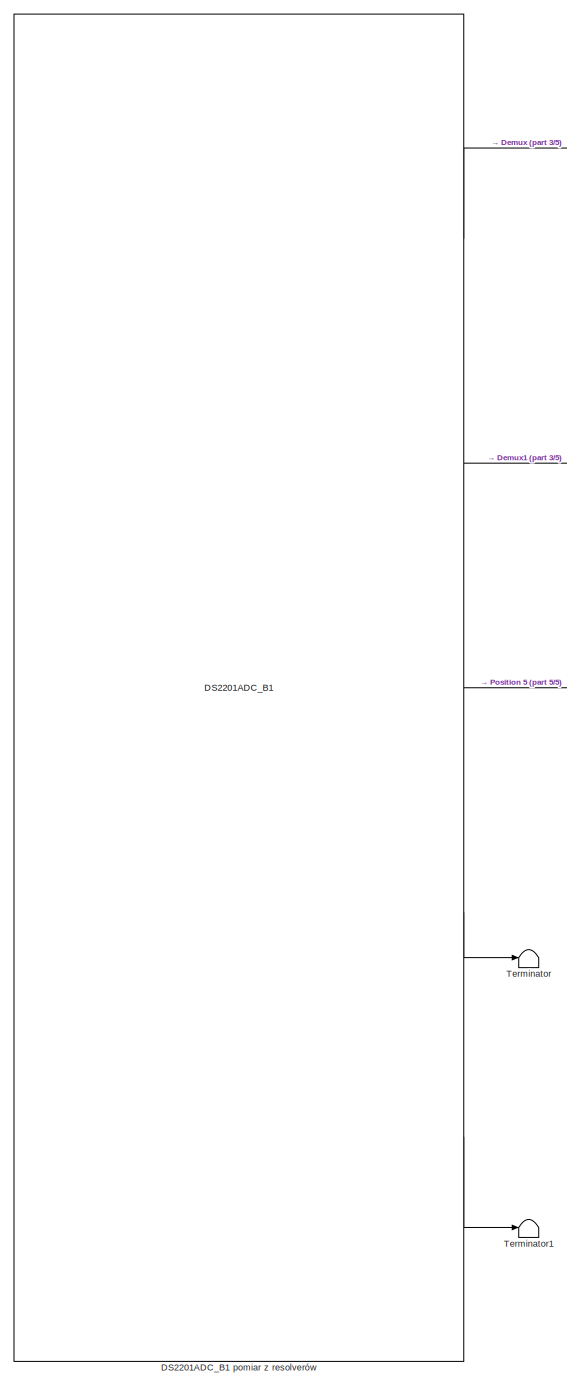
[diagram: root canvas - part 1/5, left side, full height]
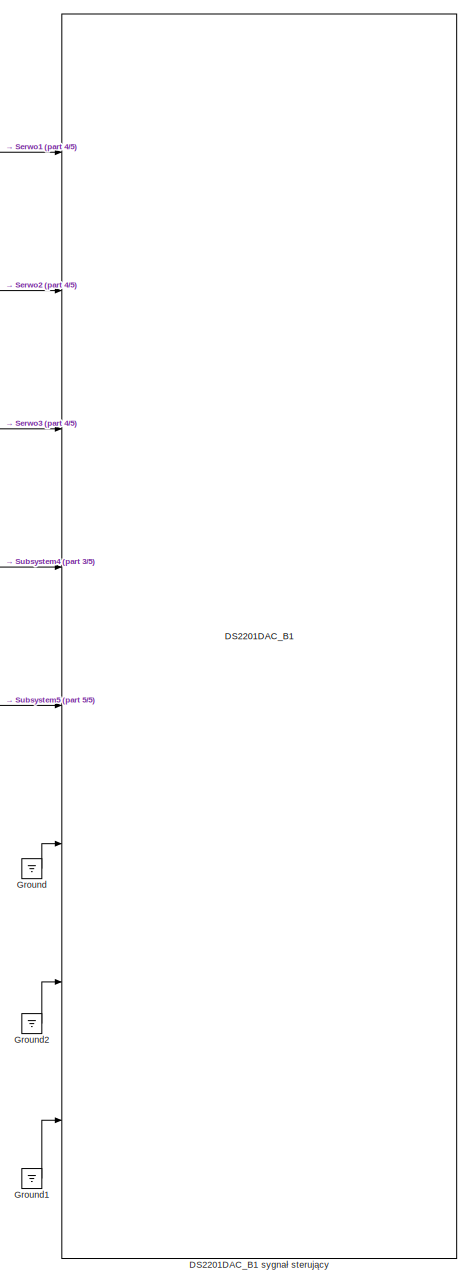
[diagram: root canvas - part 2/5, right side, full height]
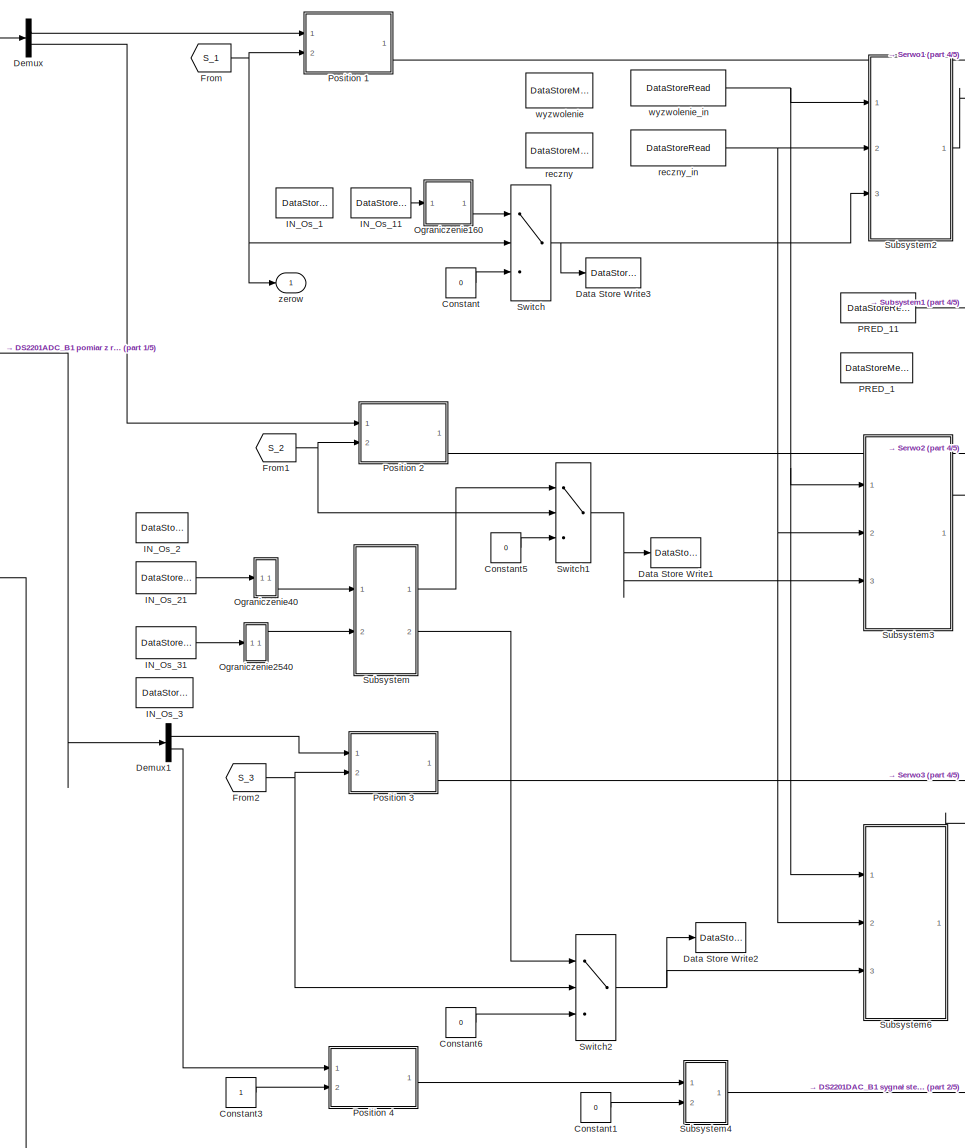
[diagram: root canvas - part 3/5, center side, full height]
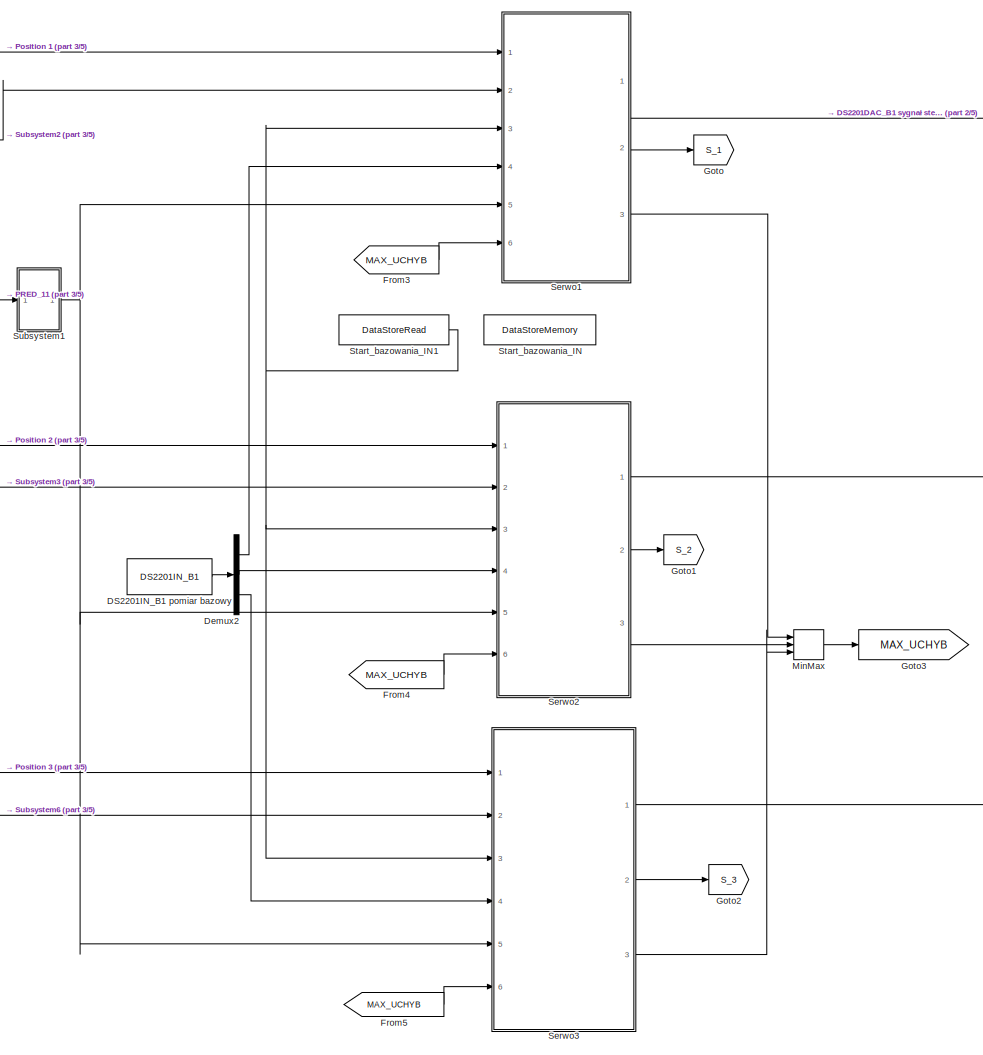
[diagram: root canvas - part 4/5, center side, full height]
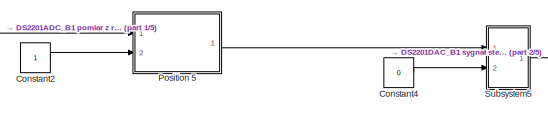
[diagram: root canvas - part 5/5, bottom center region]
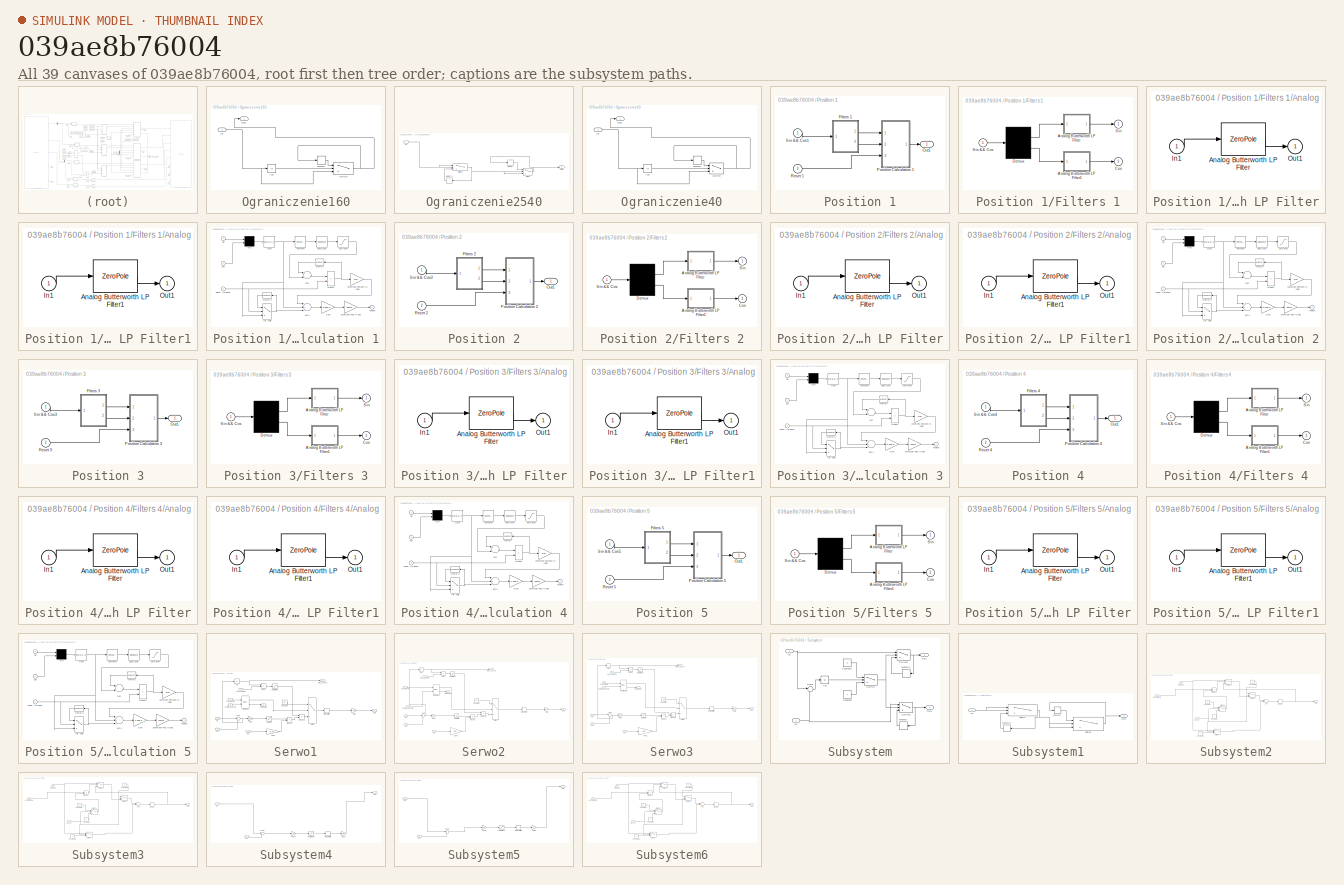
[diagram: thumbnail index - all 39 canvases of the model, root first then tree order]
MODEL slx_039ae8b76004
KIND model
CONFIG AbsTol = auto
CONFIG FixedStep = 0.001
CONFIG MaxStep = auto
CONFIG MinStep = auto
CONFIG PostLoadFcn = , if any(exist('dsrtsu_mdlpostloadfcn', 'file') == [2, 3, 6]), try dsrtsu_mdlpostloadfcn('Execute', bdroot); catch fprintf('Error in PostLoadFcn (dsrtsu_mdlpostloadfcn) for model "%s":\n %s\n', bdroot, lasterr); end, end, \n
CONFIG RelTol = 1e-3
CONFIG SampleTimeConstraint = Unconstrained
CONFIG Solver = ode1
CONFIG SolverMode = Auto
CONFIG SolverName = ode1
CONFIG StartTime = 0
CONFIG StopTime = inf
BLOCK [Constant] Constant
  Value = 0
BLOCK [Constant] Constant1
  Value = 0
BLOCK [Constant] Constant2
BLOCK [Constant] Constant3
BLOCK [Constant] Constant4
  Value = 0
BLOCK [Constant] Constant5
  Value = 0
BLOCK [Constant] Constant6
  Value = 0
BLOCK [Reference] DS2201ADC_B1 pomiar z resolverów  REF=rtilibm/DS2201/DS2201ADC_B1
  Diagnostics = AllowInheritedTsInSrc
  Ports = [0, 5]
  SourceBlock = rtilibm/DS2201/DS2201ADC_B1
  SourceType = DS2201ADC
BLOCK [Reference] DS2201DAC_B1 sygnał sterujący  REF=rtilibm/DS2201/DS2201DAC_B1
  Diagnostics = AllowInheritedTsInSrc
  Ports = [8]
  SourceBlock = rtilibm/DS2201/DS2201DAC_B1
  SourceType = DS2201DAC
BLOCK [Reference] DS2201IN_B1 pomiar bazowy  REF=rtilibm/DS2201/DS2201IN_B1
  Ports = [0, 1]
  SourceBlock = rtilibm/DS2201/DS2201IN_B1
  SourceType = DS2201IN
BLOCK [DataStoreWrite] Data Store Write1
  DataStoreName = IN_Os_2
  Ports = [1]
BLOCK [DataStoreWrite] Data Store Write2
  DataStoreName = IN_Os_3
  Ports = [1]
BLOCK [DataStoreWrite] Data Store Write3
  DataStoreName = IN_Os_1
  Ports = [1]
BLOCK [Demux] Demux
  DisplayOption = bar
  Outputs = 2
  Ports = [1, 2]
BLOCK [Demux] Demux1
  DisplayOption = bar
  Outputs = 2
  Ports = [1, 2]
BLOCK [Demux] Demux2
  DisplayOption = bar
  Outputs = 3
  Ports = [1, 3]
BLOCK [From] From
  GotoTag = S_1
BLOCK [From] From1
  GotoTag = S_2
BLOCK [From] From2
  GotoTag = S_3
BLOCK [From] From3
  GotoTag = MAX_UCHYB
BLOCK [From] From4
  GotoTag = MAX_UCHYB
BLOCK [From] From5
  GotoTag = MAX_UCHYB
BLOCK [Goto] Goto
  GotoTag = S_1
BLOCK [Goto] Goto1
  GotoTag = S_2
BLOCK [Goto] Goto2
  GotoTag = S_3
BLOCK [Goto] Goto3
  GotoTag = MAX_UCHYB
BLOCK [Ground] Ground
BLOCK [Ground] Ground1
BLOCK [Ground] Ground2
BLOCK [DataStoreMemory] IN_Os_1 
  DataStoreName = IN_Os_1
  ReadBeforeWriteMsg = warning
  ShowAdditionalParam = off
  WriteAfterReadMsg = warning
  WriteAfterWriteMsg = warning
BLOCK [DataStoreRead] IN_Os_11
  DataStoreName = IN_Os_1
  Ports = [0, 1]
BLOCK [DataStoreMemory] IN_Os_2 
  DataStoreName = IN_Os_2
  ReadBeforeWriteMsg = warning
  ShowAdditionalParam = off
  WriteAfterReadMsg = warning
  WriteAfterWriteMsg = warning
BLOCK [DataStoreRead] IN_Os_21
  DataStoreName = IN_Os_2
  Ports = [0, 1]
BLOCK [DataStoreMemory] IN_Os_3 
  DataStoreName = IN_Os_3
  ReadBeforeWriteMsg = warning
  ShowAdditionalParam = off
  WriteAfterReadMsg = warning
  WriteAfterWriteMsg = warning
BLOCK [DataStoreRead] IN_Os_31
  DataStoreName = IN_Os_3
  Ports = [0, 1]
BLOCK [MinMax] MinMax
  Function = max
  InputSameDT = off
  Inputs = 3
  Ports = [3, 1]
  SaturateOnIntegerOverflow = off
BLOCK [SubSystem] Ograniczenie160
  Ports = [1, 1]
  RequestExecContextInheritance = off
  Variant = off
BLOCK [Abs] Ograniczenie160/Abs
  SaturateOnIntegerOverflow = off
BLOCK [Inport] Ograniczenie160/In1
  IconDisplay = Port number
BLOCK [Memory] Ograniczenie160/Memory
BLOCK [Outport] Ograniczenie160/Out1
  IconDisplay = Port number
BLOCK [Switch] Ograniczenie160/Switch
  Criteria = u2 > Threshold
  InputSameDT = off
  SaturateOnIntegerOverflow = off
  Threshold = 160
BLOCK [SubSystem] Ograniczenie2540
  Ports = [1, 1]
  RequestExecContextInheritance = off
  Variant = off
BLOCK [Inport] Ograniczenie2540/In1
  IconDisplay = Port number
BLOCK [Memory] Ograniczenie2540/Memory
BLOCK [Memory] Ograniczenie2540/Memory1
BLOCK [Outport] Ograniczenie2540/Out1
  IconDisplay = Port number
BLOCK [Switch] Ograniczenie2540/Switch
  Criteria = u2 > Threshold
  InputSameDT = off
  SaturateOnIntegerOverflow = off
  Threshold = 40
BLOCK [Switch] Ograniczenie2540/Switch1
  Criteria = u2 > Threshold
  InputSameDT = off
  SaturateOnIntegerOverflow = off
  Threshold = -25
BLOCK [SubSystem] Ograniczenie40
  Ports = [1, 1]
  RequestExecContextInheritance = off
  Variant = off
BLOCK [Abs] Ograniczenie40/Abs
  SaturateOnIntegerOverflow = off
BLOCK [Inport] Ograniczenie40/In1
  IconDisplay = Port number
BLOCK [Memory] Ograniczenie40/Memory
BLOCK [Outport] Ograniczenie40/Out1
  IconDisplay = Port number
BLOCK [Switch] Ograniczenie40/Switch
  Criteria = u2 > Threshold
  InputSameDT = off
  SaturateOnIntegerOverflow = off
  Threshold = 40
BLOCK [DataStoreMemory] PRED_1 
  DataStoreName = PRED_1
  InitialValue = 50
  ReadBeforeWriteMsg = warning
  ShowAdditionalParam = off
  WriteAfterReadMsg = warning
  WriteAfterWriteMsg = warning
BLOCK [DataStoreRead] PRED_11 
  DataStoreName = PRED_1
  Ports = [0, 1]
BLOCK [SubSystem] Position 1
  Ports = [2, 1]
  RequestExecContextInheritance = off
  Variant = off
BLOCK [SubSystem] Position 1/Filters 1
  Ports = [1, 2]
  RequestExecContextInheritance = off
  ShowPortLabels = none
  Variant = off
BLOCK [SubSystem] Position 1/Filters 1/Analog Butterworth LP Filter
  Ports = [1, 1]
  RequestExecContextInheritance = off
  Variant = off
BLOCK [ZeroPole] Position 1/Filters 1/Analog Butterworth LP Filter/Analog Butterworth LP Filter
  Gain = k
  Poles = p
  Zeros = z
BLOCK [Inport] Position 1/Filters 1/Analog Butterworth LP Filter/In1
  IconDisplay = Port number
BLOCK [Outport] Position 1/Filters 1/Analog Butterworth LP Filter/Out1
  IconDisplay = Port number
BLOCK [SubSystem] Position 1/Filters 1/Analog Butterworth LP Filter1
  Ports = [1, 1]
  RequestExecContextInheritance = off
  Variant = off
BLOCK [ZeroPole] Position 1/Filters 1/Analog Butterworth LP Filter1/Analog Butterworth LP Filter1
  Gain = k
  Poles = p
  Zeros = z
BLOCK [Inport] Position 1/Filters 1/Analog Butterworth LP Filter1/In1
  IconDisplay = Port number
BLOCK [Outport] Position 1/Filters 1/Analog Butterworth LP Filter1/Out1
  IconDisplay = Port number
BLOCK [Outport] Position 1/Filters 1/Cos
  IconDisplay = Port number
  Port = 2
BLOCK [Demux] Position 1/Filters 1/Demux
  Outputs = 2
  Ports = [1, 2]
BLOCK [Outport] Position 1/Filters 1/Sin
  IconDisplay = Port number
BLOCK [Inport] Position 1/Filters 1/Sin && Cos
  IconDisplay = Port number
BLOCK [Outport] Position 1/Out1
  IconDisplay = Port number
BLOCK [SubSystem] Position 1/Position Calculation 1
  Ports = [3, 1]
  RequestExecContextInheritance = off
  ShowPortLabels = none
  Variant = off
BLOCK [Fcn] Position 1/Position Calculation 1/Atan2
  Expr = atan2(u[1],u[2])
BLOCK [Gain] Position 1/Position Calculation 1/Conversion Rad to Deg
  Gain = 180/pi
BLOCK [Gain] Position 1/Position Calculation 1/Conversion Rotation to Angle
  Gain = 2*pi
BLOCK [Inport] Position 1/Position Calculation 1/Cos
  IconDisplay = Port number
  Port = 2
BLOCK [DeadZone] Position 1/Position Calculation 1/Dead Zone
  LowerValue = -5000
  UpperValue = 5000
BLOCK [Derivative] Position 1/Position Calculation 1/Derivative
BLOCK [Gain] Position 1/Position Calculation 1/Gear
  Gain = 6.33e-3
BLOCK [Switch] Position 1/Position Calculation 1/Init Angle
  Threshold = 1
BLOCK [Memory] Position 1/Position Calculation 1/Memory
BLOCK [Memory] Position 1/Position Calculation 1/Memory1
BLOCK [Mux] Position 1/Position Calculation 1/Mux
  Inputs = 2
  Ports = [2, 1]
BLOCK [Outport] Position 1/Position Calculation 1/Position
  IconDisplay = Port number
BLOCK [Product] Position 1/Position Calculation 1/Product
  Ports = [2, 1]
BLOCK [Inport] Position 1/Position Calculation 1/Reset (Impulse)
  IconDisplay = Port number
  Port = 3
BLOCK [Saturate] Position 1/Position Calculation 1/Saturation
  InputPortMap = u0
  LowerLimit = -1
  Ports = [1, 1]
  UpperLimit = 1
BLOCK [Inport] Position 1/Position Calculation 1/Sin
  IconDisplay = Port number
BLOCK [Sum] Position 1/Position Calculation 1/Sum
  Inputs = +-
  Ports = [2, 1]
BLOCK [Sum] Position 1/Position Calculation 1/Sum1
  Inputs = ++-
  Ports = [3, 1]
BLOCK [Inport] Position 1/Reset 1
  IconDisplay = Port number
  Port = 2
BLOCK [Inport] Position 1/Sin && Cos1
  IconDisplay = Port number
BLOCK [SubSystem] Position 2
  Ports = [2, 1]
  RequestExecContextInheritance = off
  Variant = off
BLOCK [SubSystem] Position 2/Filters 2
  Ports = [1, 2]
  RequestExecContextInheritance = off
  ShowPortLabels = none
  Variant = off
BLOCK [SubSystem] Position 2/Filters 2/Analog Butterworth LP Filter
  Ports = [1, 1]
  RequestExecContextInheritance = off
  Variant = off
BLOCK [ZeroPole] Position 2/Filters 2/Analog Butterworth LP Filter/Analog Butterworth LP Filter
  Gain = k
  Poles = p
  Zeros = z
BLOCK [Inport] Position 2/Filters 2/Analog Butterworth LP Filter/In1
  IconDisplay = Port number
BLOCK [Outport] Position 2/Filters 2/Analog Butterworth LP Filter/Out1
  IconDisplay = Port number
BLOCK [SubSystem] Position 2/Filters 2/Analog Butterworth LP Filter1
  Ports = [1, 1]
  RequestExecContextInheritance = off
  Variant = off
BLOCK [ZeroPole] Position 2/Filters 2/Analog Butterworth LP Filter1/Analog Butterworth LP Filter1
  Gain = k
  Poles = p
  Zeros = z
BLOCK [Inport] Position 2/Filters 2/Analog Butterworth LP Filter1/In1
  IconDisplay = Port number
BLOCK [Outport] Position 2/Filters 2/Analog Butterworth LP Filter1/Out1
  IconDisplay = Port number
BLOCK [Outport] Position 2/Filters 2/Cos
  IconDisplay = Port number
  Port = 2
BLOCK [Demux] Position 2/Filters 2/Demux
  Outputs = 2
  Ports = [1, 2]
BLOCK [Outport] Position 2/Filters 2/Sin
  IconDisplay = Port number
BLOCK [Inport] Position 2/Filters 2/Sin && Cos
  IconDisplay = Port number
BLOCK [Outport] Position 2/Out1
  IconDisplay = Port number
BLOCK [SubSystem] Position 2/Position Calculation 2
  Ports = [3, 1]
  RequestExecContextInheritance = off
  ShowPortLabels = none
  Variant = off
BLOCK [Fcn] Position 2/Position Calculation 2/Atan2
  Expr = atan2(u[1],u[2])
BLOCK [Gain] Position 2/Position Calculation 2/Conversion Rad to Deg
  Gain = 180/pi
BLOCK [Gain] Position 2/Position Calculation 2/Conversion Rotation to Angle
  Gain = 2*pi
BLOCK [Inport] Position 2/Position Calculation 2/Cos
  IconDisplay = Port number
  Port = 2
BLOCK [DeadZone] Position 2/Position Calculation 2/Dead Zone
  LowerValue = -5000
  UpperValue = 5000
BLOCK [Derivative] Position 2/Position Calculation 2/Derivative
BLOCK [Gain] Position 2/Position Calculation 2/Gear
  Gain = 6.37e-3
BLOCK [Switch] Position 2/Position Calculation 2/Init Angle
  Threshold = 1
BLOCK [Memory] Position 2/Position Calculation 2/Memory
BLOCK [Memory] Position 2/Position Calculation 2/Memory1
BLOCK [Mux] Position 2/Position Calculation 2/Mux
  Inputs = 2
  Ports = [2, 1]
BLOCK [Outport] Position 2/Position Calculation 2/Position
  IconDisplay = Port number
BLOCK [Product] Position 2/Position Calculation 2/Product
  Ports = [2, 1]
BLOCK [Inport] Position 2/Position Calculation 2/Reset (Impulse)
  IconDisplay = Port number
  Port = 3
BLOCK [Saturate] Position 2/Position Calculation 2/Saturation
  InputPortMap = u0
  LowerLimit = -1
  Ports = [1, 1]
  UpperLimit = 1
BLOCK [Inport] Position 2/Position Calculation 2/Sin
  IconDisplay = Port number
BLOCK [Sum] Position 2/Position Calculation 2/Sum
  Inputs = +-
  Ports = [2, 1]
BLOCK [Sum] Position 2/Position Calculation 2/Sum1
  Inputs = ++-
  Ports = [3, 1]
BLOCK [Inport] Position 2/Reset 2
  IconDisplay = Port number
  Port = 2
BLOCK [Inport] Position 2/Sin && Cos2
  IconDisplay = Port number
BLOCK [SubSystem] Position 3
  Ports = [2, 1]
  RequestExecContextInheritance = off
  Variant = off
BLOCK [SubSystem] Position 3/Filters 3
  Ports = [1, 2]
  RequestExecContextInheritance = off
  ShowPortLabels = none
  Variant = off
BLOCK [SubSystem] Position 3/Filters 3/Analog Butterworth LP Filter
  Ports = [1, 1]
  RequestExecContextInheritance = off
  Variant = off
BLOCK [ZeroPole] Position 3/Filters 3/Analog Butterworth LP Filter/Analog Butterworth LP Filter
  Gain = k
  Poles = p
  Zeros = z
BLOCK [Inport] Position 3/Filters 3/Analog Butterworth LP Filter/In1
  IconDisplay = Port number
BLOCK [Outport] Position 3/Filters 3/Analog Butterworth LP Filter/Out1
  IconDisplay = Port number
BLOCK [SubSystem] Position 3/Filters 3/Analog Butterworth LP Filter1
  Ports = [1, 1]
  RequestExecContextInheritance = off
  Variant = off
BLOCK [ZeroPole] Position 3/Filters 3/Analog Butterworth LP Filter1/Analog Butterworth LP Filter1
  Gain = k
  Poles = p
  Zeros = z
BLOCK [Inport] Position 3/Filters 3/Analog Butterworth LP Filter1/In1
  IconDisplay = Port number
BLOCK [Outport] Position 3/Filters 3/Analog Butterworth LP Filter1/Out1
  IconDisplay = Port number
BLOCK [Outport] Position 3/Filters 3/Cos
  IconDisplay = Port number
  Port = 2
BLOCK [Demux] Position 3/Filters 3/Demux
  Outputs = 2
  Ports = [1, 2]
BLOCK [Outport] Position 3/Filters 3/Sin
  IconDisplay = Port number
BLOCK [Inport] Position 3/Filters 3/Sin && Cos
  IconDisplay = Port number
BLOCK [Outport] Position 3/Out1
  IconDisplay = Port number
BLOCK [SubSystem] Position 3/Position Calculation 3
  Ports = [3, 1]
  RequestExecContextInheritance = off
  ShowPortLabels = none
  Variant = off
BLOCK [Fcn] Position 3/Position Calculation 3/Atan2
  Expr = atan2(u[1],u[2])
BLOCK [Gain] Position 3/Position Calculation 3/Conversion Rad to Deg
  Gain = 180/pi
BLOCK [Gain] Position 3/Position Calculation 3/Conversion Rotation to Angle
  Gain = 2*pi
BLOCK [Inport] Position 3/Position Calculation 3/Cos
  IconDisplay = Port number
  Port = 2
BLOCK [DeadZone] Position 3/Position Calculation 3/Dead Zone
  LowerValue = -5000
  UpperValue = 5000
BLOCK [Derivative] Position 3/Position Calculation 3/Derivative
BLOCK [Gain] Position 3/Position Calculation 3/Gear
  Gain = 6.33e-3
BLOCK [Switch] Position 3/Position Calculation 3/Init Angle
  Threshold = 1
BLOCK [Memory] Position 3/Position Calculation 3/Memory
BLOCK [Memory] Position 3/Position Calculation 3/Memory1
BLOCK [Mux] Position 3/Position Calculation 3/Mux
  Inputs = 2
  Ports = [2, 1]
BLOCK [Outport] Position 3/Position Calculation 3/Position
  IconDisplay = Port number
BLOCK [Product] Position 3/Position Calculation 3/Product
  Ports = [2, 1]
BLOCK [Inport] Position 3/Position Calculation 3/Reset (Impulse)
  IconDisplay = Port number
  Port = 3
BLOCK [Saturate] Position 3/Position Calculation 3/Saturation
  InputPortMap = u0
  LowerLimit = -1
  Ports = [1, 1]
  UpperLimit = 1
BLOCK [Inport] Position 3/Position Calculation 3/Sin
  IconDisplay = Port number
BLOCK [Sum] Position 3/Position Calculation 3/Sum
  Inputs = +-
  Ports = [2, 1]
BLOCK [Sum] Position 3/Position Calculation 3/Sum1
  Inputs = ++-
  Ports = [3, 1]
BLOCK [Inport] Position 3/Reset 3
  IconDisplay = Port number
  Port = 2
BLOCK [Inport] Position 3/Sin && Cos3
  IconDisplay = Port number
BLOCK [SubSystem] Position 4
  Ports = [2, 1]
  RequestExecContextInheritance = off
  Variant = off
BLOCK [SubSystem] Position 4/Filters 4
  Ports = [1, 2]
  RequestExecContextInheritance = off
  ShowPortLabels = none
  Variant = off
BLOCK [SubSystem] Position 4/Filters 4/Analog Butterworth LP Filter
  Ports = [1, 1]
  RequestExecContextInheritance = off
  Variant = off
BLOCK [ZeroPole] Position 4/Filters 4/Analog Butterworth LP Filter/Analog Butterworth LP Filter
  Gain = k
  Poles = p
  Zeros = z
BLOCK [Inport] Position 4/Filters 4/Analog Butterworth LP Filter/In1
  IconDisplay = Port number
BLOCK [Outport] Position 4/Filters 4/Analog Butterworth LP Filter/Out1
  IconDisplay = Port number
BLOCK [SubSystem] Position 4/Filters 4/Analog Butterworth LP Filter1
  Ports = [1, 1]
  RequestExecContextInheritance = off
  Variant = off
BLOCK [ZeroPole] Position 4/Filters 4/Analog Butterworth LP Filter1/Analog Butterworth LP Filter1
  Gain = k
  Poles = p
  Zeros = z
BLOCK [Inport] Position 4/Filters 4/Analog Butterworth LP Filter1/In1
  IconDisplay = Port number
BLOCK [Outport] Position 4/Filters 4/Analog Butterworth LP Filter1/Out1
  IconDisplay = Port number
BLOCK [Outport] Position 4/Filters 4/Cos
  IconDisplay = Port number
  Port = 2
BLOCK [Demux] Position 4/Filters 4/Demux
  Outputs = 2
  Ports = [1, 2]
BLOCK [Outport] Position 4/Filters 4/Sin
  IconDisplay = Port number
BLOCK [Inport] Position 4/Filters 4/Sin && Cos
  IconDisplay = Port number
BLOCK [Outport] Position 4/Out1
  IconDisplay = Port number
BLOCK [SubSystem] Position 4/Position Calculation 4
  Ports = [3, 1]
  RequestExecContextInheritance = off
  ShowPortLabels = none
  Variant = off
BLOCK [Fcn] Position 4/Position Calculation 4/Atan2
  Expr = atan2(u[1],u[2])
BLOCK [Gain] Position 4/Position Calculation 4/Conversion Rad to Deg
  Gain = 180/pi
BLOCK [Gain] Position 4/Position Calculation 4/Conversion Rotation to Angle
  Gain = 2*pi
BLOCK [Inport] Position 4/Position Calculation 4/Cos
  IconDisplay = Port number
  Port = 2
BLOCK [DeadZone] Position 4/Position Calculation 4/Dead Zone
  LowerValue = -5000
  UpperValue = 5000
BLOCK [Derivative] Position 4/Position Calculation 4/Derivative
BLOCK [Gain] Position 4/Position Calculation 4/Gear
  Gain = 7.87e-3
BLOCK [Switch] Position 4/Position Calculation 4/Init Angle
  Threshold = 1
BLOCK [Memory] Position 4/Position Calculation 4/Memory
BLOCK [Memory] Position 4/Position Calculation 4/Memory1
BLOCK [Mux] Position 4/Position Calculation 4/Mux
  Inputs = 2
  Ports = [2, 1]
BLOCK [Outport] Position 4/Position Calculation 4/Position
  IconDisplay = Port number
BLOCK [Product] Position 4/Position Calculation 4/Product
  Ports = [2, 1]
BLOCK [Inport] Position 4/Position Calculation 4/Reset (Impulse)
  IconDisplay = Port number
  Port = 3
BLOCK [Saturate] Position 4/Position Calculation 4/Saturation
  InputPortMap = u0
  LowerLimit = -1
  Ports = [1, 1]
  UpperLimit = 1
BLOCK [Inport] Position 4/Position Calculation 4/Sin
  IconDisplay = Port number
BLOCK [Sum] Position 4/Position Calculation 4/Sum
  Inputs = +-
  Ports = [2, 1]
BLOCK [Sum] Position 4/Position Calculation 4/Sum1
  Inputs = ++-
  Ports = [3, 1]
BLOCK [Inport] Position 4/Reset 4
  IconDisplay = Port number
  Port = 2
BLOCK [Inport] Position 4/Sin && Cos4
  IconDisplay = Port number
BLOCK [SubSystem] Position 5
  Ports = [2, 1]
  RequestExecContextInheritance = off
  Variant = off
BLOCK [SubSystem] Position 5/Filters 5
  Ports = [1, 2]
  RequestExecContextInheritance = off
  ShowPortLabels = none
  Variant = off
BLOCK [SubSystem] Position 5/Filters 5/Analog Butterworth LP Filter
  Ports = [1, 1]
  RequestExecContextInheritance = off
  Variant = off
BLOCK [ZeroPole] Position 5/Filters 5/Analog Butterworth LP Filter/Analog Butterworth LP Filter
  Gain = k
  Poles = p
  Zeros = z
BLOCK [Inport] Position 5/Filters 5/Analog Butterworth LP Filter/In1
  IconDisplay = Port number
BLOCK [Outport] Position 5/Filters 5/Analog Butterworth LP Filter/Out1
  IconDisplay = Port number
BLOCK [SubSystem] Position 5/Filters 5/Analog Butterworth LP Filter1
  Ports = [1, 1]
  RequestExecContextInheritance = off
  Variant = off
BLOCK [ZeroPole] Position 5/Filters 5/Analog Butterworth LP Filter1/Analog Butterworth LP Filter1
  Gain = k
  Poles = p
  Zeros = z
BLOCK [Inport] Position 5/Filters 5/Analog Butterworth LP Filter1/In1
  IconDisplay = Port number
BLOCK [Outport] Position 5/Filters 5/Analog Butterworth LP Filter1/Out1
  IconDisplay = Port number
BLOCK [Outport] Position 5/Filters 5/Cos
  IconDisplay = Port number
  Port = 2
BLOCK [Demux] Position 5/Filters 5/Demux
  Outputs = 2
  Ports = [1, 2]
BLOCK [Outport] Position 5/Filters 5/Sin
  IconDisplay = Port number
BLOCK [Inport] Position 5/Filters 5/Sin && Cos
  IconDisplay = Port number
BLOCK [Outport] Position 5/Out1
  IconDisplay = Port number
BLOCK [SubSystem] Position 5/Position Calculation 5
  Ports = [3, 1]
  RequestExecContextInheritance = off
  ShowPortLabels = none
  Variant = off
BLOCK [Fcn] Position 5/Position Calculation 5/Atan2
  Expr = atan2(u[1],u[2])
BLOCK [Gain] Position 5/Position Calculation 5/Conversion Rad to Deg
  Gain = 180/pi
BLOCK [Gain] Position 5/Position Calculation 5/Conversion Rotation to Angle
  Gain = 2*pi
BLOCK [Inport] Position 5/Position Calculation 5/Cos
  IconDisplay = Port number
  Port = 2
BLOCK [DeadZone] Position 5/Position Calculation 5/Dead Zone
  LowerValue = -5000
  UpperValue = 5000
BLOCK [Derivative] Position 5/Position Calculation 5/Derivative
BLOCK [Gain] Position 5/Position Calculation 5/Gear
  Gain = 1.32e-2
BLOCK [Switch] Position 5/Position Calculation 5/Init Angle
  Threshold = 1
BLOCK [Memory] Position 5/Position Calculation 5/Memory
BLOCK [Memory] Position 5/Position Calculation 5/Memory1
BLOCK [Mux] Position 5/Position Calculation 5/Mux
  Inputs = 2
  Ports = [2, 1]
BLOCK [Outport] Position 5/Position Calculation 5/Position
  IconDisplay = Port number
BLOCK [Product] Position 5/Position Calculation 5/Product
  Ports = [2, 1]
BLOCK [Inport] Position 5/Position Calculation 5/Reset (Impulse)
  IconDisplay = Port number
  Port = 3
BLOCK [Saturate] Position 5/Position Calculation 5/Saturation
  InputPortMap = u0
  LowerLimit = -1
  Ports = [1, 1]
  UpperLimit = 1
BLOCK [Inport] Position 5/Position Calculation 5/Sin
  IconDisplay = Port number
BLOCK [Sum] Position 5/Position Calculation 5/Sum
  Inputs = +-
  Ports = [2, 1]
BLOCK [Sum] Position 5/Position Calculation 5/Sum1
  Inputs = ++-
  Ports = [3, 1]
BLOCK [Inport] Position 5/Reset 5
  IconDisplay = Port number
  Port = 2
BLOCK [Inport] Position 5/Sin && Cos5
  IconDisplay = Port number
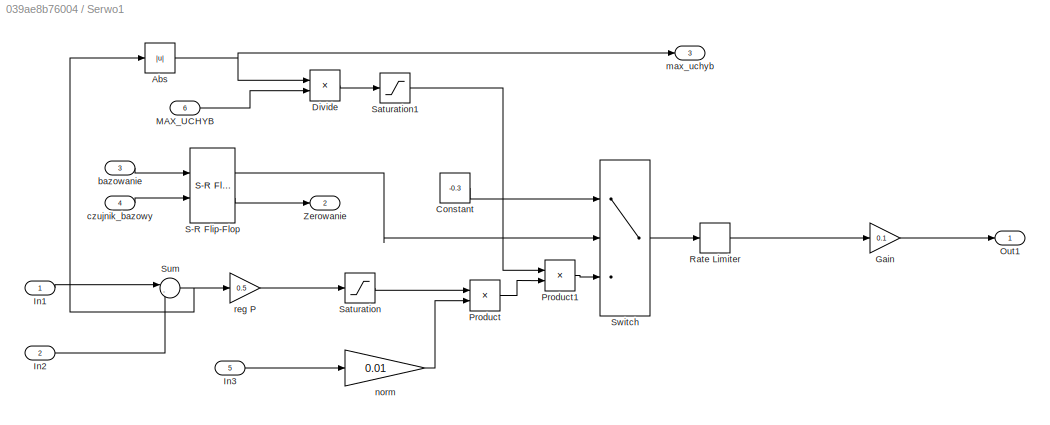
BLOCK [SubSystem] Serwo1
  Ports = [6, 3]
  RequestExecContextInheritance = off
  Variant = off
BLOCK [Abs] Serwo1/Abs
  SaturateOnIntegerOverflow = off
BLOCK [Constant] Serwo1/Constant
  Value = -0.3
BLOCK [Product] Serwo1/Divide
  InputSameDT = off
  Inputs = */
  OutDataTypeStr = Inherit: Inherit via internal rule
  Ports = [2, 1]
  RndMeth = Floor
  SaturateOnIntegerOverflow = off
BLOCK [Gain] Serwo1/Gain
  Gain = 0.1
  OutDataTypeStr = Inherit: Inherit via internal rule
  ParamDataTypeStr = Inherit: Inherit via internal rule
  SaturateOnIntegerOverflow = off
BLOCK [Inport] Serwo1/In1
  IconDisplay = Port number
BLOCK [Inport] Serwo1/In2
  IconDisplay = Port number
  Port = 2
BLOCK [Inport] Serwo1/In3
  IconDisplay = Port number
  Port = 5
BLOCK [Inport] Serwo1/MAX_UCHYB 
  IconDisplay = Port number
  Port = 6
BLOCK [Outport] Serwo1/Out1
  IconDisplay = Port number
BLOCK [Product] Serwo1/Product
  InputSameDT = off
  OutDataTypeStr = Inherit: Inherit via internal rule
  Ports = [2, 1]
  RndMeth = Floor
  SaturateOnIntegerOverflow = off
BLOCK [Product] Serwo1/Product1
  InputSameDT = off
  OutDataTypeStr = Inherit: Inherit via internal rule
  Ports = [2, 1]
  RndMeth = Floor
  SaturateOnIntegerOverflow = off
BLOCK [RateLimiter] Serwo1/Rate Limiter
  FallingSlewLimit = -50
  RisingSlewLimit = 50
  SampleTimeMode = inherited
BLOCK [Reference] Serwo1/S-R Flip-Flop  REF=simulink_extras/Flip Flops/S-R
Flip-Flop
  Ports = [2, 2]
  SourceBlock = simulink_extras/Flip Flops/S-R\nFlip-Flop
  SourceType = SRFlipFlop
BLOCK [Saturate] Serwo1/Saturation
  InputPortMap = u0
  LowerLimit = -3
  Ports = [1, 1]
  UpperLimit = 3
BLOCK [Saturate] Serwo1/Saturation1
  InputPortMap = u0
  LowerLimit = 0.001
  Ports = [1, 1]
  UpperLimit = 1
BLOCK [Sum] Serwo1/Sum
  IconShape = round
  InputSameDT = off
  Inputs = |-+
  OutDataTypeStr = Inherit: Inherit via internal rule
  Ports = [2, 1]
  SaturateOnIntegerOverflow = off
BLOCK [Switch] Serwo1/Switch
  Criteria = u2 > Threshold
  InputSameDT = off
  SaturateOnIntegerOverflow = off
BLOCK [Outport] Serwo1/Zerowanie
  IconDisplay = Port number
  Port = 2
BLOCK [Inport] Serwo1/bazowanie
  IconDisplay = Port number
  Port = 3
BLOCK [Inport] Serwo1/czujnik_bazowy
  IconDisplay = Port number
  Port = 4
BLOCK [Outport] Serwo1/max_uchyb 
  IconDisplay = Port number
  Port = 3
BLOCK [Gain] Serwo1/norm
  Gain = 0.01
  OutDataTypeStr = Inherit: Inherit via internal rule
  ParamDataTypeStr = Inherit: Inherit via internal rule
  SaturateOnIntegerOverflow = off
BLOCK [Gain] Serwo1/reg P
  Gain = 0.5
  OutDataTypeStr = Inherit: Inherit via internal rule
  ParamDataTypeStr = Inherit: Inherit via internal rule
  SaturateOnIntegerOverflow = off
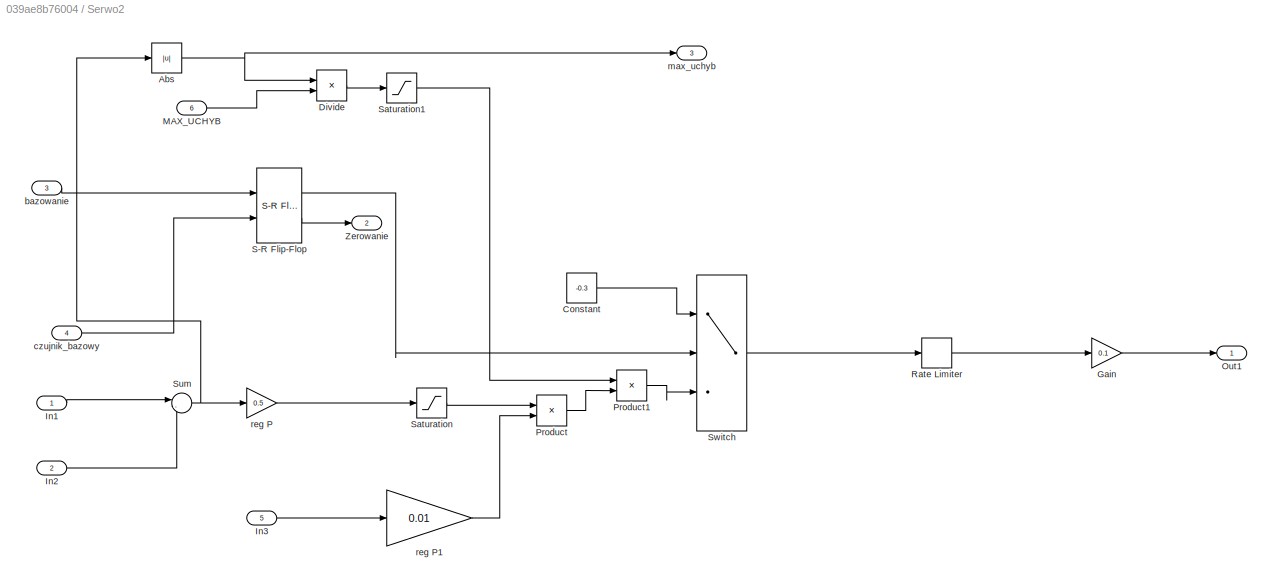
BLOCK [SubSystem] Serwo2
  Ports = [6, 3]
  RequestExecContextInheritance = off
  Variant = off
BLOCK [Abs] Serwo2/Abs
  SaturateOnIntegerOverflow = off
BLOCK [Constant] Serwo2/Constant
  Value = -0.3
BLOCK [Product] Serwo2/Divide
  InputSameDT = off
  Inputs = */
  OutDataTypeStr = Inherit: Inherit via internal rule
  Ports = [2, 1]
  RndMeth = Floor
  SaturateOnIntegerOverflow = off
BLOCK [Gain] Serwo2/Gain
  Gain = 0.1
  OutDataTypeStr = Inherit: Inherit via internal rule
  ParamDataTypeStr = Inherit: Inherit via internal rule
  SaturateOnIntegerOverflow = off
BLOCK [Inport] Serwo2/In1
  IconDisplay = Port number
BLOCK [Inport] Serwo2/In2
  IconDisplay = Port number
  Port = 2
BLOCK [Inport] Serwo2/In3
  IconDisplay = Port number
  Port = 5
BLOCK [Inport] Serwo2/MAX_UCHYB 
  IconDisplay = Port number
  Port = 6
BLOCK [Outport] Serwo2/Out1
  IconDisplay = Port number
BLOCK [Product] Serwo2/Product
  InputSameDT = off
  OutDataTypeStr = Inherit: Inherit via internal rule
  Ports = [2, 1]
  RndMeth = Floor
  SaturateOnIntegerOverflow = off
BLOCK [Product] Serwo2/Product1
  InputSameDT = off
  OutDataTypeStr = Inherit: Inherit via internal rule
  Ports = [2, 1]
  RndMeth = Floor
  SaturateOnIntegerOverflow = off
BLOCK [RateLimiter] Serwo2/Rate Limiter
  FallingSlewLimit = -50
  RisingSlewLimit = 50
  SampleTimeMode = inherited
BLOCK [Reference] Serwo2/S-R Flip-Flop  REF=simulink_extras/Flip Flops/S-R
Flip-Flop
  Ports = [2, 2]
  SourceBlock = simulink_extras/Flip Flops/S-R\nFlip-Flop
  SourceType = SRFlipFlop
BLOCK [Saturate] Serwo2/Saturation
  InputPortMap = u0
  LowerLimit = -3
  Ports = [1, 1]
  UpperLimit = 3
BLOCK [Saturate] Serwo2/Saturation1
  InputPortMap = u0
  LowerLimit = 0.001
  Ports = [1, 1]
  UpperLimit = 1
BLOCK [Sum] Serwo2/Sum
  IconShape = round
  InputSameDT = off
  Inputs = |-+
  OutDataTypeStr = Inherit: Inherit via internal rule
  Ports = [2, 1]
  SaturateOnIntegerOverflow = off
BLOCK [Switch] Serwo2/Switch
  Criteria = u2 > Threshold
  InputSameDT = off
  SaturateOnIntegerOverflow = off
BLOCK [Outport] Serwo2/Zerowanie
  IconDisplay = Port number
  Port = 2
BLOCK [Inport] Serwo2/bazowanie
  IconDisplay = Port number
  Port = 3
BLOCK [Inport] Serwo2/czujnik_bazowy
  IconDisplay = Port number
  Port = 4
BLOCK [Outport] Serwo2/max_uchyb 
  IconDisplay = Port number
  Port = 3
BLOCK [Gain] Serwo2/reg P
  Gain = 0.5
  OutDataTypeStr = Inherit: Inherit via internal rule
  ParamDataTypeStr = Inherit: Inherit via internal rule
  SaturateOnIntegerOverflow = off
BLOCK [Gain] Serwo2/reg P1
  Gain = 0.01
  OutDataTypeStr = Inherit: Inherit via internal rule
  ParamDataTypeStr = Inherit: Inherit via internal rule
  SaturateOnIntegerOverflow = off
BLOCK [SubSystem] Serwo3
  Ports = [6, 3]
  RequestExecContextInheritance = off
  Variant = off
BLOCK [Abs] Serwo3/Abs
  SaturateOnIntegerOverflow = off
BLOCK [Constant] Serwo3/Constant
  Value = -0.3
BLOCK [Product] Serwo3/Divide
  InputSameDT = off
  Inputs = */
  OutDataTypeStr = Inherit: Inherit via internal rule
  Ports = [2, 1]
  RndMeth = Floor
  SaturateOnIntegerOverflow = off
BLOCK [Gain] Serwo3/Gain
  Gain = 0.1
  OutDataTypeStr = Inherit: Inherit via internal rule
  ParamDataTypeStr = Inherit: Inherit via internal rule
  SaturateOnIntegerOverflow = off
BLOCK [Inport] Serwo3/In1
  IconDisplay = Port number
BLOCK [Inport] Serwo3/In2
  IconDisplay = Port number
  Port = 2
BLOCK [Inport] Serwo3/In3
  IconDisplay = Port number
  Port = 5
BLOCK [Inport] Serwo3/MAX_UCHYB 
  IconDisplay = Port number
  Port = 6
BLOCK [Outport] Serwo3/Out1
  IconDisplay = Port number
BLOCK [Product] Serwo3/Product
  InputSameDT = off
  OutDataTypeStr = Inherit: Inherit via internal rule
  Ports = [2, 1]
  RndMeth = Floor
  SaturateOnIntegerOverflow = off
BLOCK [Product] Serwo3/Product1
  InputSameDT = off
  OutDataTypeStr = Inherit: Inherit via internal rule
  Ports = [2, 1]
  RndMeth = Floor
  SaturateOnIntegerOverflow = off
BLOCK [RateLimiter] Serwo3/Rate Limiter
  FallingSlewLimit = -50
  RisingSlewLimit = 50
  SampleTimeMode = inherited
BLOCK [Reference] Serwo3/S-R Flip-Flop  REF=simulink_extras/Flip Flops/S-R
Flip-Flop
  Ports = [2, 2]
  SourceBlock = simulink_extras/Flip Flops/S-R\nFlip-Flop
  SourceType = SRFlipFlop
BLOCK [Saturate] Serwo3/Saturation
  InputPortMap = u0
  LowerLimit = -3
  Ports = [1, 1]
  UpperLimit = 3
BLOCK [Saturate] Serwo3/Saturation1
  InputPortMap = u0
  LowerLimit = 0.001
  Ports = [1, 1]
  UpperLimit = 1
BLOCK [Sum] Serwo3/Sum
  IconShape = round
  InputSameDT = off
  Inputs = |-+
  OutDataTypeStr = Inherit: Inherit via internal rule
  Ports = [2, 1]
  SaturateOnIntegerOverflow = off
BLOCK [Switch] Serwo3/Switch
  Criteria = u2 > Threshold
  InputSameDT = off
  SaturateOnIntegerOverflow = off
BLOCK [Outport] Serwo3/Zerowanie
  IconDisplay = Port number
  Port = 2
BLOCK [Inport] Serwo3/bazowanie
  IconDisplay = Port number
  Port = 3
BLOCK [Inport] Serwo3/czujnik_bazowy
  IconDisplay = Port number
  Port = 4
BLOCK [Outport] Serwo3/max_uchyb 
  IconDisplay = Port number
  Port = 3
BLOCK [Gain] Serwo3/reg P
  Gain = 0.5
  OutDataTypeStr = Inherit: Inherit via internal rule
  ParamDataTypeStr = Inherit: Inherit via internal rule
  SaturateOnIntegerOverflow = off
BLOCK [Gain] Serwo3/reg P1
  Gain = 0.01
  OutDataTypeStr = Inherit: Inherit via internal rule
  ParamDataTypeStr = Inherit: Inherit via internal rule
  SaturateOnIntegerOverflow = off
BLOCK [DataStoreMemory] Start_bazowania_IN 
  DataStoreName = Start_bazowania_IN
  ReadBeforeWriteMsg = warning
  ShowAdditionalParam = off
  WriteAfterReadMsg = warning
  WriteAfterWriteMsg = warning
BLOCK [DataStoreRead] Start_bazowania_IN1
  DataStoreName = Start_bazowania_IN
  Ports = [0, 1]
BLOCK [SubSystem] Subsystem
  Ports = [2, 2]
  RequestExecContextInheritance = off
  Variant = off
BLOCK [Abs] Subsystem/Abs
  SaturateOnIntegerOverflow = off
BLOCK [Constant] Subsystem/Constant
BLOCK [Constant] Subsystem/Constant1
  Value = 0
BLOCK [Inport] Subsystem/In1
  IconDisplay = Port number
BLOCK [Inport] Subsystem/In2
  IconDisplay = Port number
  Port = 2
BLOCK [Memory] Subsystem/Memory
BLOCK [Memory] Subsystem/Memory1
BLOCK [Outport] Subsystem/Out1
  IconDisplay = Port number
BLOCK [Outport] Subsystem/Out2
  IconDisplay = Port number
  Port = 2
BLOCK [Sum] Subsystem/Sum3
  IconShape = round
  InputSameDT = off
  Inputs = |-+
  OutDataTypeStr = Inherit: Inherit via internal rule
  Ports = [2, 1]
  SaturateOnIntegerOverflow = off
BLOCK [Switch] Subsystem/Switch
  Criteria = u2 > Threshold
  InputSameDT = off
  SaturateOnIntegerOverflow = off
  Threshold = 40
BLOCK [Switch] Subsystem/Switch1
  Criteria = u2 > Threshold
  InputSameDT = off
  SaturateOnIntegerOverflow = off
BLOCK [Switch] Subsystem/Switch2
  Criteria = u2 > Threshold
  InputSameDT = off
  SaturateOnIntegerOverflow = off
BLOCK [SubSystem] Subsystem1
  Ports = [1, 1]
  RequestExecContextInheritance = off
  Variant = off
BLOCK [Inport] Subsystem1/In2
  IconDisplay = Port number
BLOCK [Memory] Subsystem1/Memory
BLOCK [Memory] Subsystem1/Memory1
BLOCK [Outport] Subsystem1/Out1
  IconDisplay = Port number
BLOCK [Switch] Subsystem1/Switch3
  InputSameDT = off
  SaturateOnIntegerOverflow = off
  Threshold = 100
BLOCK [Switch] Subsystem1/Switch4
  Criteria = u2 > Threshold
  InputSameDT = off
  SaturateOnIntegerOverflow = off
  Threshold = 1
BLOCK [SubSystem] Subsystem2
  Ports = [3, 1]
  RequestExecContextInheritance = off
  Variant = off
BLOCK [Sum] Subsystem2/Add
  InputSameDT = off
  OutDataTypeStr = Inherit: Inherit via internal rule
  Ports = [2, 1]
  SaturateOnIntegerOverflow = off
BLOCK [Constant] Subsystem2/Constant10
  Value = 0
BLOCK [Constant] Subsystem2/Constant7
  Value = 0
BLOCK [Constant] Subsystem2/Constant8
BLOCK [Constant] Subsystem2/Constant9
  Value = 0
BLOCK [Memory] Subsystem2/Memory
BLOCK [Outport] Subsystem2/Out1
  IconDisplay = Port number
BLOCK [Product] Subsystem2/Product
  InputSameDT = off
  OutDataTypeStr = Inherit: Inherit via internal rule
  Ports = [2, 1]
  RndMeth = Floor
  SaturateOnIntegerOverflow = off
BLOCK [Switch] Subsystem2/Switch3
  Criteria = u2 > Threshold
  InputSameDT = off
  SaturateOnIntegerOverflow = off
BLOCK [Switch] Subsystem2/Switch4
  Criteria = u2 > Threshold
  InputSameDT = off
  SaturateOnIntegerOverflow = off
BLOCK [Switch] Subsystem2/Switch5
  Criteria = u2 > Threshold
  InputSameDT = off
  SaturateOnIntegerOverflow = off
BLOCK [Switch] Subsystem2/Switch6
  Criteria = u2 > Threshold
  InputSameDT = off
  SaturateOnIntegerOverflow = off
BLOCK [Inport] Subsystem2/reczny 
  IconDisplay = Port number
  Port = 2
BLOCK [Inport] Subsystem2/wyzwolenie
  IconDisplay = Port number
BLOCK [Inport] Subsystem2/zadana 
  IconDisplay = Port number
  Port = 3
BLOCK [SubSystem] Subsystem3
  Ports = [3, 1]
  RequestExecContextInheritance = off
  Variant = off
BLOCK [Sum] Subsystem3/Add
  InputSameDT = off
  OutDataTypeStr = Inherit: Inherit via internal rule
  Ports = [2, 1]
  SaturateOnIntegerOverflow = off
BLOCK [Constant] Subsystem3/Constant10
  Value = 0
BLOCK [Constant] Subsystem3/Constant7
  Value = 0
BLOCK [Constant] Subsystem3/Constant8
BLOCK [Constant] Subsystem3/Constant9
  Value = 0
BLOCK [Memory] Subsystem3/Memory
BLOCK [Outport] Subsystem3/Out1
  IconDisplay = Port number
BLOCK [Product] Subsystem3/Product
  InputSameDT = off
  OutDataTypeStr = Inherit: Inherit via internal rule
  Ports = [2, 1]
  RndMeth = Floor
  SaturateOnIntegerOverflow = off
BLOCK [Switch] Subsystem3/Switch3
  Criteria = u2 > Threshold
  InputSameDT = off
  SaturateOnIntegerOverflow = off
BLOCK [Switch] Subsystem3/Switch4
  Criteria = u2 > Threshold
  InputSameDT = off
  SaturateOnIntegerOverflow = off
BLOCK [Switch] Subsystem3/Switch5
  Criteria = u2 > Threshold
  InputSameDT = off
  SaturateOnIntegerOverflow = off
BLOCK [Switch] Subsystem3/Switch6
  Criteria = u2 > Threshold
  InputSameDT = off
  SaturateOnIntegerOverflow = off
BLOCK [Inport] Subsystem3/reczny 
  IconDisplay = Port number
  Port = 2
BLOCK [Inport] Subsystem3/wyzwolenie
  IconDisplay = Port number
BLOCK [Inport] Subsystem3/zadana 
  IconDisplay = Port number
  Port = 3
BLOCK [SubSystem] Subsystem4
  Ports = [2, 1]
  RequestExecContextInheritance = off
  Variant = off
BLOCK [Gain] Subsystem4/Gain4
  Gain = 0.1
  OutDataTypeStr = Inherit: Inherit via internal rule
  ParamDataTypeStr = Inherit: Inherit via internal rule
  SaturateOnIntegerOverflow = off
BLOCK [Inport] Subsystem4/In1
  IconDisplay = Port number
BLOCK [Inport] Subsystem4/In2
  IconDisplay = Port number
  Port = 2
BLOCK [Outport] Subsystem4/Out1
  IconDisplay = Port number
BLOCK [RateLimiter] Subsystem4/Rate Limiter4
  FallingSlewLimit = -50
  RisingSlewLimit = 50
  SampleTimeMode = inherited
BLOCK [Saturate] Subsystem4/Saturation4
  InputPortMap = u0
  LowerLimit = -3
  Ports = [1, 1]
  UpperLimit = 3
BLOCK [Sum] Subsystem4/Sum3
  IconShape = round
  InputSameDT = off
  Inputs = |-+
  OutDataTypeStr = Inherit: Inherit via internal rule
  Ports = [2, 1]
  SaturateOnIntegerOverflow = off
BLOCK [Gain] Subsystem4/reg P4
  Gain = 0.5
  OutDataTypeStr = Inherit: Inherit via internal rule
  ParamDataTypeStr = Inherit: Inherit via internal rule
  SaturateOnIntegerOverflow = off
BLOCK [SubSystem] Subsystem5
  Ports = [2, 1]
  RequestExecContextInheritance = off
  Variant = off
BLOCK [Gain] Subsystem5/Gain3
  Gain = 0.1
  OutDataTypeStr = Inherit: Inherit via internal rule
  ParamDataTypeStr = Inherit: Inherit via internal rule
  SaturateOnIntegerOverflow = off
BLOCK [Inport] Subsystem5/In1
  IconDisplay = Port number
BLOCK [Inport] Subsystem5/In2
  IconDisplay = Port number
  Port = 2
BLOCK [Outport] Subsystem5/Out1
  IconDisplay = Port number
BLOCK [RateLimiter] Subsystem5/Rate Limiter3
  FallingSlewLimit = -50
  RisingSlewLimit = 50
  SampleTimeMode = inherited
BLOCK [Saturate] Subsystem5/Saturation3
  InputPortMap = u0
  LowerLimit = -3
  Ports = [1, 1]
  UpperLimit = 3
BLOCK [Sum] Subsystem5/Sum4
  IconShape = round
  InputSameDT = off
  Inputs = |-+
  OutDataTypeStr = Inherit: Inherit via internal rule
  Ports = [2, 1]
  SaturateOnIntegerOverflow = off
BLOCK [Gain] Subsystem5/reg P3
  Gain = 0.5
  OutDataTypeStr = Inherit: Inherit via internal rule
  ParamDataTypeStr = Inherit: Inherit via internal rule
  SaturateOnIntegerOverflow = off
BLOCK [SubSystem] Subsystem6
  Ports = [3, 1]
  RequestExecContextInheritance = off
  Variant = off
BLOCK [Sum] Subsystem6/Add
  InputSameDT = off
  OutDataTypeStr = Inherit: Inherit via internal rule
  Ports = [2, 1]
  SaturateOnIntegerOverflow = off
BLOCK [Constant] Subsystem6/Constant10
  Value = 0
BLOCK [Constant] Subsystem6/Constant7
  Value = 0
BLOCK [Constant] Subsystem6/Constant8
BLOCK [Constant] Subsystem6/Constant9
  Value = 0
BLOCK [Memory] Subsystem6/Memory
BLOCK [Outport] Subsystem6/Out1
  IconDisplay = Port number
BLOCK [Product] Subsystem6/Product
  InputSameDT = off
  OutDataTypeStr = Inherit: Inherit via internal rule
  Ports = [2, 1]
  RndMeth = Floor
  SaturateOnIntegerOverflow = off
BLOCK [Switch] Subsystem6/Switch3
  Criteria = u2 > Threshold
  InputSameDT = off
  SaturateOnIntegerOverflow = off
BLOCK [Switch] Subsystem6/Switch4
  Criteria = u2 > Threshold
  InputSameDT = off
  SaturateOnIntegerOverflow = off
BLOCK [Switch] Subsystem6/Switch5
  Criteria = u2 > Threshold
  InputSameDT = off
  SaturateOnIntegerOverflow = off
BLOCK [Switch] Subsystem6/Switch6
  Criteria = u2 > Threshold
  InputSameDT = off
  SaturateOnIntegerOverflow = off
BLOCK [Inport] Subsystem6/reczny 
  IconDisplay = Port number
  Port = 2
BLOCK [Inport] Subsystem6/wyzwolenie
  IconDisplay = Port number
BLOCK [Inport] Subsystem6/zadana 
  IconDisplay = Port number
  Port = 3
BLOCK [Switch] Switch
  Criteria = u2 > Threshold
  InputSameDT = off
  SaturateOnIntegerOverflow = off
BLOCK [Switch] Switch1
  Criteria = u2 > Threshold
  InputSameDT = off
  SaturateOnIntegerOverflow = off
BLOCK [Switch] Switch2
  Criteria = u2 > Threshold
  InputSameDT = off
  SaturateOnIntegerOverflow = off
BLOCK [Terminator] Terminator
BLOCK [Terminator] Terminator1
BLOCK [DataStoreMemory] reczny 
  DataStoreName = reczny
  ReadBeforeWriteMsg = warning
  ShowAdditionalParam = off
  WriteAfterReadMsg = warning
  WriteAfterWriteMsg = warning
BLOCK [DataStoreRead] reczny_in 
  DataStoreName = reczny
  Ports = [0, 1]
BLOCK [DataStoreMemory] wyzwolenie 
  DataStoreName = wyzwolenie
  ReadBeforeWriteMsg = warning
  ShowAdditionalParam = off
  WriteAfterReadMsg = warning
  WriteAfterWriteMsg = warning
BLOCK [DataStoreRead] wyzwolenie_in 
  DataStoreName = wyzwolenie
  Ports = [0, 1]
BLOCK [Outport] zerow
  IconDisplay = Port number
LINE Constant1:1 -> Subsystem4:2
LINE Constant2:1 -> Position 5:2
LINE Constant3:1 -> Position 4:2
LINE Constant4:1 -> Subsystem5:2
LINE Constant5:1 -> Switch1:3
LINE Constant6:1 -> Switch2:3
LINE Constant:1 -> Switch:3
LINE DS2201ADC_B1 pomiar z resolverów:1 -> Demux:1
LINE DS2201ADC_B1 pomiar z resolverów:2 -> Demux1:1
LINE DS2201ADC_B1 pomiar z resolverów:3 -> Position 5:1
LINE DS2201ADC_B1 pomiar z resolverów:4 -> Terminator:1
LINE DS2201ADC_B1 pomiar z resolverów:5 -> Terminator1:1
LINE DS2201IN_B1 pomiar bazowy:1 -> Demux2:1
LINE Demux1:1 -> Position 3:1
LINE Demux1:2 -> Position 4:1
LINE Demux2:1 -> Serwo1:4
LINE Demux2:2 -> Serwo2:4
LINE Demux2:3 -> Serwo3:4
LINE Demux:1 -> Position 1:1
LINE Demux:2 -> Position 2:1
NET From1:1 -> Position 2:2, Switch1:2
NET From2:1 -> Position 3:2, Switch2:2
LINE From3:1 -> Serwo1:6
LINE From4:1 -> Serwo2:6
LINE From5:1 -> Serwo3:6
NET From:1 -> Position 1:2, Switch:2, zerow:1
LINE Ground1:1 -> DS2201DAC_B1 sygnał sterujący:8
LINE Ground2:1 -> DS2201DAC_B1 sygnał sterujący:7
LINE Ground:1 -> DS2201DAC_B1 sygnał sterujący:6
LINE IN_Os_11:1 -> Ograniczenie160:1
LINE IN_Os_21:1 -> Ograniczenie40:1
LINE IN_Os_31:1 -> Ograniczenie2540:1
LINE MinMax:1 -> Goto3:1
LINE Ograniczenie160/Abs:1 -> Ograniczenie160/Switch:2
NET Ograniczenie160/In1:1 -> Ograniczenie160/Abs:1, Ograniczenie160/Switch:3
LINE Ograniczenie160/Memory:1 -> Ograniczenie160/Switch:1
NET Ograniczenie160/Switch:1 -> Ograniczenie160/Memory:1, Ograniczenie160/Out1:1
LINE Ograniczenie160:1 -> Switch:1
NET Ograniczenie2540/In1:1 -> Ograniczenie2540/Switch1:1, Ograniczenie2540/Switch1:2
LINE Ograniczenie2540/Memory1:1 -> Ograniczenie2540/Switch1:3
LINE Ograniczenie2540/Memory:1 -> Ograniczenie2540/Switch:1
NET Ograniczenie2540/Switch1:1 -> Ograniczenie2540/Memory1:1, Ograniczenie2540/Switch:2, Ograniczenie2540/Switch:3
NET Ograniczenie2540/Switch:1 -> Ograniczenie2540/Memory:1, Ograniczenie2540/Out1:1
LINE Ograniczenie2540:1 -> Subsystem:2
LINE Ograniczenie40/Abs:1 -> Ograniczenie40/Switch:2
NET Ograniczenie40/In1:1 -> Ograniczenie40/Abs:1, Ograniczenie40/Switch:3
LINE Ograniczenie40/Memory:1 -> Ograniczenie40/Switch:1
NET Ograniczenie40/Switch:1 -> Ograniczenie40/Memory:1, Ograniczenie40/Out1:1
LINE Ograniczenie40:1 -> Subsystem:1
LINE PRED_11 :1 -> Subsystem1:1
LINE Position 1/Filters 1/Analog Butterworth LP Filter/Analog Butterworth LP Filter:1 -> Position 1/Filters 1/Analog Butterworth LP Filter/Out1:1
LINE Position 1/Filters 1/Analog Butterworth LP Filter/In1:1 -> Position 1/Filters 1/Analog Butterworth LP Filter/Analog Butterworth LP Filter:1
LINE Position 1/Filters 1/Analog Butterworth LP Filter1/Analog Butterworth LP Filter1:1 -> Position 1/Filters 1/Analog Butterworth LP Filter1/Out1:1
LINE Position 1/Filters 1/Analog Butterworth LP Filter1/In1:1 -> Position 1/Filters 1/Analog Butterworth LP Filter1/Analog Butterworth LP Filter1:1
LINE Position 1/Filters 1/Analog Butterworth LP Filter1:1 -> Position 1/Filters 1/Cos:1
LINE Position 1/Filters 1/Analog Butterworth LP Filter:1 -> Position 1/Filters 1/Sin:1
LINE Position 1/Filters 1/Demux:1 -> Position 1/Filters 1/Analog Butterworth LP Filter:1
LINE Position 1/Filters 1/Demux:2 -> Position 1/Filters 1/Analog Butterworth LP Filter1:1
LINE Position 1/Filters 1/Sin && Cos:1 -> Position 1/Filters 1/Demux:1
LINE Position 1/Filters 1:1 -> Position 1/Position Calculation 1:1
LINE Position 1/Filters 1:2 -> Position 1/Position Calculation 1:2
NET Position 1/Position Calculation 1/Atan2:1 -> Position 1/Position Calculation 1/Derivative:1, Position 1/Position Calculation 1/Init Angle:3, Position 1/Position Calculation 1/Sum1:2
LINE Position 1/Position Calculation 1/Conversion Rad to Deg:1 -> Position 1/Position Calculation 1/Position:1
LINE Position 1/Position Calculation 1/Conversion Rotation to Angle:1 -> Position 1/Position Calculation 1/Sum1:1
LINE Position 1/Position Calculation 1/Cos:1 -> Position 1/Position Calculation 1/Mux:2
LINE Position 1/Position Calculation 1/Dead Zone:1 -> Position 1/Position Calculation 1/Saturation:1
LINE Position 1/Position Calculation 1/Derivative:1 -> Position 1/Position Calculation 1/Dead Zone:1
LINE Position 1/Position Calculation 1/Gear:1 -> Position 1/Position Calculation 1/Conversion Rad to Deg:1
NET Position 1/Position Calculation 1/Init Angle:1 -> Position 1/Position Calculation 1/Memory1:1, Position 1/Position Calculation 1/Sum1:3
LINE Position 1/Position Calculation 1/Memory1:1 -> Position 1/Position Calculation 1/Init Angle:1
LINE Position 1/Position Calculation 1/Memory:1 -> Position 1/Position Calculation 1/Sum:1
LINE Position 1/Position Calculation 1/Mux:1 -> Position 1/Position Calculation 1/Atan2:1
NET Position 1/Position Calculation 1/Product:1 -> Position 1/Position Calculation 1/Conversion Rotation to Angle:1, Position 1/Position Calculation 1/Memory:1
NET Position 1/Position Calculation 1/Reset (Impulse):1 -> Position 1/Position Calculation 1/Init Angle:2, Position 1/Position Calculation 1/Product:2
LINE Position 1/Position Calculation 1/Saturation:1 -> Position 1/Position Calculation 1/Sum:2
LINE Position 1/Position Calculation 1/Sin:1 -> Position 1/Position Calculation 1/Mux:1
LINE Position 1/Position Calculation 1/Sum1:1 -> Position 1/Position Calculation 1/Gear:1
LINE Position 1/Position Calculation 1/Sum:1 -> Position 1/Position Calculation 1/Product:1
LINE Position 1/Position Calculation 1:1 -> Position 1/Out1:1
LINE Position 1/Reset 1:1 -> Position 1/Position Calculation 1:3
LINE Position 1/Sin && Cos1:1 -> Position 1/Filters 1:1
LINE Position 1:1 -> Serwo1:1
LINE Position 2/Filters 2/Analog Butterworth LP Filter/Analog Butterworth LP Filter:1 -> Position 2/Filters 2/Analog Butterworth LP Filter/Out1:1
LINE Position 2/Filters 2/Analog Butterworth LP Filter/In1:1 -> Position 2/Filters 2/Analog Butterworth LP Filter/Analog Butterworth LP Filter:1
LINE Position 2/Filters 2/Analog Butterworth LP Filter1/Analog Butterworth LP Filter1:1 -> Position 2/Filters 2/Analog Butterworth LP Filter1/Out1:1
LINE Position 2/Filters 2/Analog Butterworth LP Filter1/In1:1 -> Position 2/Filters 2/Analog Butterworth LP Filter1/Analog Butterworth LP Filter1:1
LINE Position 2/Filters 2/Analog Butterworth LP Filter1:1 -> Position 2/Filters 2/Cos:1
LINE Position 2/Filters 2/Analog Butterworth LP Filter:1 -> Position 2/Filters 2/Sin:1
LINE Position 2/Filters 2/Demux:1 -> Position 2/Filters 2/Analog Butterworth LP Filter:1
LINE Position 2/Filters 2/Demux:2 -> Position 2/Filters 2/Analog Butterworth LP Filter1:1
LINE Position 2/Filters 2/Sin && Cos:1 -> Position 2/Filters 2/Demux:1
LINE Position 2/Filters 2:1 -> Position 2/Position Calculation 2:1
LINE Position 2/Filters 2:2 -> Position 2/Position Calculation 2:2
NET Position 2/Position Calculation 2/Atan2:1 -> Position 2/Position Calculation 2/Derivative:1, Position 2/Position Calculation 2/Init Angle:3, Position 2/Position Calculation 2/Sum1:2
LINE Position 2/Position Calculation 2/Conversion Rad to Deg:1 -> Position 2/Position Calculation 2/Position:1
LINE Position 2/Position Calculation 2/Conversion Rotation to Angle:1 -> Position 2/Position Calculation 2/Sum1:1
LINE Position 2/Position Calculation 2/Cos:1 -> Position 2/Position Calculation 2/Mux:2
LINE Position 2/Position Calculation 2/Dead Zone:1 -> Position 2/Position Calculation 2/Saturation:1
LINE Position 2/Position Calculation 2/Derivative:1 -> Position 2/Position Calculation 2/Dead Zone:1
LINE Position 2/Position Calculation 2/Gear:1 -> Position 2/Position Calculation 2/Conversion Rad to Deg:1
NET Position 2/Position Calculation 2/Init Angle:1 -> Position 2/Position Calculation 2/Memory1:1, Position 2/Position Calculation 2/Sum1:3
LINE Position 2/Position Calculation 2/Memory1:1 -> Position 2/Position Calculation 2/Init Angle:1
LINE Position 2/Position Calculation 2/Memory:1 -> Position 2/Position Calculation 2/Sum:1
LINE Position 2/Position Calculation 2/Mux:1 -> Position 2/Position Calculation 2/Atan2:1
NET Position 2/Position Calculation 2/Product:1 -> Position 2/Position Calculation 2/Conversion Rotation to Angle:1, Position 2/Position Calculation 2/Memory:1
NET Position 2/Position Calculation 2/Reset (Impulse):1 -> Position 2/Position Calculation 2/Init Angle:2, Position 2/Position Calculation 2/Product:2
LINE Position 2/Position Calculation 2/Saturation:1 -> Position 2/Position Calculation 2/Sum:2
LINE Position 2/Position Calculation 2/Sin:1 -> Position 2/Position Calculation 2/Mux:1
LINE Position 2/Position Calculation 2/Sum1:1 -> Position 2/Position Calculation 2/Gear:1
LINE Position 2/Position Calculation 2/Sum:1 -> Position 2/Position Calculation 2/Product:1
LINE Position 2/Position Calculation 2:1 -> Position 2/Out1:1
LINE Position 2/Reset 2:1 -> Position 2/Position Calculation 2:3
LINE Position 2/Sin && Cos2:1 -> Position 2/Filters 2:1
LINE Position 2:1 -> Serwo2:1
LINE Position 3/Filters 3/Analog Butterworth LP Filter/Analog Butterworth LP Filter:1 -> Position 3/Filters 3/Analog Butterworth LP Filter/Out1:1
LINE Position 3/Filters 3/Analog Butterworth LP Filter/In1:1 -> Position 3/Filters 3/Analog Butterworth LP Filter/Analog Butterworth LP Filter:1
LINE Position 3/Filters 3/Analog Butterworth LP Filter1/Analog Butterworth LP Filter1:1 -> Position 3/Filters 3/Analog Butterworth LP Filter1/Out1:1
LINE Position 3/Filters 3/Analog Butterworth LP Filter1/In1:1 -> Position 3/Filters 3/Analog Butterworth LP Filter1/Analog Butterworth LP Filter1:1
LINE Position 3/Filters 3/Analog Butterworth LP Filter1:1 -> Position 3/Filters 3/Cos:1
LINE Position 3/Filters 3/Analog Butterworth LP Filter:1 -> Position 3/Filters 3/Sin:1
LINE Position 3/Filters 3/Demux:1 -> Position 3/Filters 3/Analog Butterworth LP Filter:1
LINE Position 3/Filters 3/Demux:2 -> Position 3/Filters 3/Analog Butterworth LP Filter1:1
LINE Position 3/Filters 3/Sin && Cos:1 -> Position 3/Filters 3/Demux:1
LINE Position 3/Filters 3:1 -> Position 3/Position Calculation 3:1
LINE Position 3/Filters 3:2 -> Position 3/Position Calculation 3:2
NET Position 3/Position Calculation 3/Atan2:1 -> Position 3/Position Calculation 3/Derivative:1, Position 3/Position Calculation 3/Init Angle:3, Position 3/Position Calculation 3/Sum1:2
LINE Position 3/Position Calculation 3/Conversion Rad to Deg:1 -> Position 3/Position Calculation 3/Position:1
LINE Position 3/Position Calculation 3/Conversion Rotation to Angle:1 -> Position 3/Position Calculation 3/Sum1:1
LINE Position 3/Position Calculation 3/Cos:1 -> Position 3/Position Calculation 3/Mux:2
LINE Position 3/Position Calculation 3/Dead Zone:1 -> Position 3/Position Calculation 3/Saturation:1
LINE Position 3/Position Calculation 3/Derivative:1 -> Position 3/Position Calculation 3/Dead Zone:1
LINE Position 3/Position Calculation 3/Gear:1 -> Position 3/Position Calculation 3/Conversion Rad to Deg:1
NET Position 3/Position Calculation 3/Init Angle:1 -> Position 3/Position Calculation 3/Memory1:1, Position 3/Position Calculation 3/Sum1:3
LINE Position 3/Position Calculation 3/Memory1:1 -> Position 3/Position Calculation 3/Init Angle:1
LINE Position 3/Position Calculation 3/Memory:1 -> Position 3/Position Calculation 3/Sum:1
LINE Position 3/Position Calculation 3/Mux:1 -> Position 3/Position Calculation 3/Atan2:1
NET Position 3/Position Calculation 3/Product:1 -> Position 3/Position Calculation 3/Conversion Rotation to Angle:1, Position 3/Position Calculation 3/Memory:1
NET Position 3/Position Calculation 3/Reset (Impulse):1 -> Position 3/Position Calculation 3/Init Angle:2, Position 3/Position Calculation 3/Product:2
LINE Position 3/Position Calculation 3/Saturation:1 -> Position 3/Position Calculation 3/Sum:2
LINE Position 3/Position Calculation 3/Sin:1 -> Position 3/Position Calculation 3/Mux:1
LINE Position 3/Position Calculation 3/Sum1:1 -> Position 3/Position Calculation 3/Gear:1
LINE Position 3/Position Calculation 3/Sum:1 -> Position 3/Position Calculation 3/Product:1
LINE Position 3/Position Calculation 3:1 -> Position 3/Out1:1
LINE Position 3/Reset 3:1 -> Position 3/Position Calculation 3:3
LINE Position 3/Sin && Cos3:1 -> Position 3/Filters 3:1
LINE Position 3:1 -> Serwo3:1
LINE Position 4/Filters 4/Analog Butterworth LP Filter/Analog Butterworth LP Filter:1 -> Position 4/Filters 4/Analog Butterworth LP Filter/Out1:1
LINE Position 4/Filters 4/Analog Butterworth LP Filter/In1:1 -> Position 4/Filters 4/Analog Butterworth LP Filter/Analog Butterworth LP Filter:1
LINE Position 4/Filters 4/Analog Butterworth LP Filter1/Analog Butterworth LP Filter1:1 -> Position 4/Filters 4/Analog Butterworth LP Filter1/Out1:1
LINE Position 4/Filters 4/Analog Butterworth LP Filter1/In1:1 -> Position 4/Filters 4/Analog Butterworth LP Filter1/Analog Butterworth LP Filter1:1
LINE Position 4/Filters 4/Analog Butterworth LP Filter1:1 -> Position 4/Filters 4/Cos:1
LINE Position 4/Filters 4/Analog Butterworth LP Filter:1 -> Position 4/Filters 4/Sin:1
LINE Position 4/Filters 4/Demux:1 -> Position 4/Filters 4/Analog Butterworth LP Filter:1
LINE Position 4/Filters 4/Demux:2 -> Position 4/Filters 4/Analog Butterworth LP Filter1:1
LINE Position 4/Filters 4/Sin && Cos:1 -> Position 4/Filters 4/Demux:1
LINE Position 4/Filters 4:1 -> Position 4/Position Calculation 4:1
LINE Position 4/Filters 4:2 -> Position 4/Position Calculation 4:2
NET Position 4/Position Calculation 4/Atan2:1 -> Position 4/Position Calculation 4/Derivative:1, Position 4/Position Calculation 4/Init Angle:3, Position 4/Position Calculation 4/Sum1:2
LINE Position 4/Position Calculation 4/Conversion Rad to Deg:1 -> Position 4/Position Calculation 4/Position:1
LINE Position 4/Position Calculation 4/Conversion Rotation to Angle:1 -> Position 4/Position Calculation 4/Sum1:1
LINE Position 4/Position Calculation 4/Cos:1 -> Position 4/Position Calculation 4/Mux:2
LINE Position 4/Position Calculation 4/Dead Zone:1 -> Position 4/Position Calculation 4/Saturation:1
LINE Position 4/Position Calculation 4/Derivative:1 -> Position 4/Position Calculation 4/Dead Zone:1
LINE Position 4/Position Calculation 4/Gear:1 -> Position 4/Position Calculation 4/Conversion Rad to Deg:1
NET Position 4/Position Calculation 4/Init Angle:1 -> Position 4/Position Calculation 4/Memory1:1, Position 4/Position Calculation 4/Sum1:3
LINE Position 4/Position Calculation 4/Memory1:1 -> Position 4/Position Calculation 4/Init Angle:1
LINE Position 4/Position Calculation 4/Memory:1 -> Position 4/Position Calculation 4/Sum:1
LINE Position 4/Position Calculation 4/Mux:1 -> Position 4/Position Calculation 4/Atan2:1
NET Position 4/Position Calculation 4/Product:1 -> Position 4/Position Calculation 4/Conversion Rotation to Angle:1, Position 4/Position Calculation 4/Memory:1
NET Position 4/Position Calculation 4/Reset (Impulse):1 -> Position 4/Position Calculation 4/Init Angle:2, Position 4/Position Calculation 4/Product:2
LINE Position 4/Position Calculation 4/Saturation:1 -> Position 4/Position Calculation 4/Sum:2
LINE Position 4/Position Calculation 4/Sin:1 -> Position 4/Position Calculation 4/Mux:1
LINE Position 4/Position Calculation 4/Sum1:1 -> Position 4/Position Calculation 4/Gear:1
LINE Position 4/Position Calculation 4/Sum:1 -> Position 4/Position Calculation 4/Product:1
LINE Position 4/Position Calculation 4:1 -> Position 4/Out1:1
LINE Position 4/Reset 4:1 -> Position 4/Position Calculation 4:3
LINE Position 4/Sin && Cos4:1 -> Position 4/Filters 4:1
LINE Position 4:1 -> Subsystem4:1
LINE Position 5/Filters 5/Analog Butterworth LP Filter/Analog Butterworth LP Filter:1 -> Position 5/Filters 5/Analog Butterworth LP Filter/Out1:1
LINE Position 5/Filters 5/Analog Butterworth LP Filter/In1:1 -> Position 5/Filters 5/Analog Butterworth LP Filter/Analog Butterworth LP Filter:1
LINE Position 5/Filters 5/Analog Butterworth LP Filter1/Analog Butterworth LP Filter1:1 -> Position 5/Filters 5/Analog Butterworth LP Filter1/Out1:1
LINE Position 5/Filters 5/Analog Butterworth LP Filter1/In1:1 -> Position 5/Filters 5/Analog Butterworth LP Filter1/Analog Butterworth LP Filter1:1
LINE Position 5/Filters 5/Analog Butterworth LP Filter1:1 -> Position 5/Filters 5/Cos:1
LINE Position 5/Filters 5/Analog Butterworth LP Filter:1 -> Position 5/Filters 5/Sin:1
LINE Position 5/Filters 5/Demux:1 -> Position 5/Filters 5/Analog Butterworth LP Filter:1
LINE Position 5/Filters 5/Demux:2 -> Position 5/Filters 5/Analog Butterworth LP Filter1:1
LINE Position 5/Filters 5/Sin && Cos:1 -> Position 5/Filters 5/Demux:1
LINE Position 5/Filters 5:1 -> Position 5/Position Calculation 5:1
LINE Position 5/Filters 5:2 -> Position 5/Position Calculation 5:2
NET Position 5/Position Calculation 5/Atan2:1 -> Position 5/Position Calculation 5/Derivative:1, Position 5/Position Calculation 5/Init Angle:3, Position 5/Position Calculation 5/Sum1:2
LINE Position 5/Position Calculation 5/Conversion Rad to Deg:1 -> Position 5/Position Calculation 5/Position:1
LINE Position 5/Position Calculation 5/Conversion Rotation to Angle:1 -> Position 5/Position Calculation 5/Sum1:1
LINE Position 5/Position Calculation 5/Cos:1 -> Position 5/Position Calculation 5/Mux:2
LINE Position 5/Position Calculation 5/Dead Zone:1 -> Position 5/Position Calculation 5/Saturation:1
LINE Position 5/Position Calculation 5/Derivative:1 -> Position 5/Position Calculation 5/Dead Zone:1
LINE Position 5/Position Calculation 5/Gear:1 -> Position 5/Position Calculation 5/Conversion Rad to Deg:1
NET Position 5/Position Calculation 5/Init Angle:1 -> Position 5/Position Calculation 5/Memory1:1, Position 5/Position Calculation 5/Sum1:3
LINE Position 5/Position Calculation 5/Memory1:1 -> Position 5/Position Calculation 5/Init Angle:1
LINE Position 5/Position Calculation 5/Memory:1 -> Position 5/Position Calculation 5/Sum:1
LINE Position 5/Position Calculation 5/Mux:1 -> Position 5/Position Calculation 5/Atan2:1
NET Position 5/Position Calculation 5/Product:1 -> Position 5/Position Calculation 5/Conversion Rotation to Angle:1, Position 5/Position Calculation 5/Memory:1
NET Position 5/Position Calculation 5/Reset (Impulse):1 -> Position 5/Position Calculation 5/Init Angle:2, Position 5/Position Calculation 5/Product:2
LINE Position 5/Position Calculation 5/Saturation:1 -> Position 5/Position Calculation 5/Sum:2
LINE Position 5/Position Calculation 5/Sin:1 -> Position 5/Position Calculation 5/Mux:1
LINE Position 5/Position Calculation 5/Sum1:1 -> Position 5/Position Calculation 5/Gear:1
LINE Position 5/Position Calculation 5/Sum:1 -> Position 5/Position Calculation 5/Product:1
LINE Position 5/Position Calculation 5:1 -> Position 5/Out1:1
LINE Position 5/Reset 5:1 -> Position 5/Position Calculation 5:3
LINE Position 5/Sin && Cos5:1 -> Position 5/Filters 5:1
LINE Position 5:1 -> Subsystem5:1
NET Serwo1/Abs:1 -> Serwo1/Divide:1, Serwo1/max_uchyb :1
LINE Serwo1/Constant:1 -> Serwo1/Switch:1
LINE Serwo1/Divide:1 -> Serwo1/Saturation1:1
LINE Serwo1/Gain:1 -> Serwo1/Out1:1
LINE Serwo1/In1:1 -> Serwo1/Sum:1
LINE Serwo1/In2:1 -> Serwo1/Sum:2
LINE Serwo1/In3:1 -> Serwo1/norm:1
LINE Serwo1/MAX_UCHYB :1 -> Serwo1/Divide:2
LINE Serwo1/Product1:1 -> Serwo1/Switch:3
LINE Serwo1/Product:1 -> Serwo1/Product1:2
LINE Serwo1/Rate Limiter:1 -> Serwo1/Gain:1
LINE Serwo1/S-R Flip-Flop:1 -> Serwo1/Switch:2
LINE Serwo1/S-R Flip-Flop:2 -> Serwo1/Zerowanie:1
LINE Serwo1/Saturation1:1 -> Serwo1/Product1:1
LINE Serwo1/Saturation:1 -> Serwo1/Product:1
NET Serwo1/Sum:1 -> Serwo1/Abs:1, Serwo1/reg P:1
LINE Serwo1/Switch:1 -> Serwo1/Rate Limiter:1
LINE Serwo1/bazowanie:1 -> Serwo1/S-R Flip-Flop:1
LINE Serwo1/czujnik_bazowy:1 -> Serwo1/S-R Flip-Flop:2
LINE Serwo1/norm:1 -> Serwo1/Product:2
LINE Serwo1/reg P:1 -> Serwo1/Saturation:1
LINE Serwo1:1 -> DS2201DAC_B1 sygnał sterujący:1
LINE Serwo1:2 -> Goto:1
LINE Serwo1:3 -> MinMax:1
NET Serwo2/Abs:1 -> Serwo2/Divide:1, Serwo2/max_uchyb :1
LINE Serwo2/Constant:1 -> Serwo2/Switch:1
LINE Serwo2/Divide:1 -> Serwo2/Saturation1:1
LINE Serwo2/Gain:1 -> Serwo2/Out1:1
LINE Serwo2/In1:1 -> Serwo2/Sum:1
LINE Serwo2/In2:1 -> Serwo2/Sum:2
LINE Serwo2/In3:1 -> Serwo2/reg P1:1
LINE Serwo2/MAX_UCHYB :1 -> Serwo2/Divide:2
LINE Serwo2/Product1:1 -> Serwo2/Switch:3
LINE Serwo2/Product:1 -> Serwo2/Product1:2
LINE Serwo2/Rate Limiter:1 -> Serwo2/Gain:1
LINE Serwo2/S-R Flip-Flop:1 -> Serwo2/Switch:2
LINE Serwo2/S-R Flip-Flop:2 -> Serwo2/Zerowanie:1
LINE Serwo2/Saturation1:1 -> Serwo2/Product1:1
LINE Serwo2/Saturation:1 -> Serwo2/Product:1
NET Serwo2/Sum:1 -> Serwo2/Abs:1, Serwo2/reg P:1
LINE Serwo2/Switch:1 -> Serwo2/Rate Limiter:1
LINE Serwo2/bazowanie:1 -> Serwo2/S-R Flip-Flop:1
LINE Serwo2/czujnik_bazowy:1 -> Serwo2/S-R Flip-Flop:2
LINE Serwo2/reg P1:1 -> Serwo2/Product:2
LINE Serwo2/reg P:1 -> Serwo2/Saturation:1
LINE Serwo2:1 -> DS2201DAC_B1 sygnał sterujący:2
LINE Serwo2:2 -> Goto1:1
LINE Serwo2:3 -> MinMax:2
NET Serwo3/Abs:1 -> Serwo3/Divide:1, Serwo3/max_uchyb :1
LINE Serwo3/Constant:1 -> Serwo3/Switch:1
LINE Serwo3/Divide:1 -> Serwo3/Saturation1:1
LINE Serwo3/Gain:1 -> Serwo3/Out1:1
LINE Serwo3/In1:1 -> Serwo3/Sum:1
LINE Serwo3/In2:1 -> Serwo3/Sum:2
LINE Serwo3/In3:1 -> Serwo3/reg P1:1
LINE Serwo3/MAX_UCHYB :1 -> Serwo3/Divide:2
LINE Serwo3/Product1:1 -> Serwo3/Switch:3
LINE Serwo3/Product:1 -> Serwo3/Product1:2
LINE Serwo3/Rate Limiter:1 -> Serwo3/Gain:1
LINE Serwo3/S-R Flip-Flop:1 -> Serwo3/Switch:2
LINE Serwo3/S-R Flip-Flop:2 -> Serwo3/Zerowanie:1
LINE Serwo3/Saturation1:1 -> Serwo3/Product1:1
LINE Serwo3/Saturation:1 -> Serwo3/Product:1
NET Serwo3/Sum:1 -> Serwo3/Abs:1, Serwo3/reg P:1
LINE Serwo3/Switch:1 -> Serwo3/Rate Limiter:1
LINE Serwo3/bazowanie:1 -> Serwo3/S-R Flip-Flop:1
LINE Serwo3/czujnik_bazowy:1 -> Serwo3/S-R Flip-Flop:2
LINE Serwo3/reg P1:1 -> Serwo3/Product:2
LINE Serwo3/reg P:1 -> Serwo3/Saturation:1
LINE Serwo3:1 -> DS2201DAC_B1 sygnał sterujący:3
LINE Serwo3:2 -> Goto2:1
LINE Serwo3:3 -> MinMax:3
NET Start_bazowania_IN1:1 -> Serwo1:3, Serwo2:3, Serwo3:3
LINE Subsystem/Abs:1 -> Subsystem/Switch:2
LINE Subsystem/Constant1:1 -> Subsystem/Switch:1
LINE Subsystem/Constant:1 -> Subsystem/Switch:3
NET Subsystem/In1:1 -> Subsystem/Sum3:1, Subsystem/Switch2:1
NET Subsystem/In2:1 -> Subsystem/Sum3:2, Subsystem/Switch1:1
LINE Subsystem/Memory1:1 -> Subsystem/Switch2:3
LINE Subsystem/Memory:1 -> Subsystem/Switch1:3
LINE Subsystem/Sum3:1 -> Subsystem/Abs:1
NET Subsystem/Switch1:1 -> Subsystem/Memory:1, Subsystem/Out2:1
NET Subsystem/Switch2:1 -> Subsystem/Memory1:1, Subsystem/Out1:1
NET Subsystem/Switch:1 -> Subsystem/Switch1:2, Subsystem/Switch2:2
NET Subsystem1/In2:1 -> Subsystem1/Switch4:1, Subsystem1/Switch4:2
LINE Subsystem1/Memory1:1 -> Subsystem1/Switch4:3
LINE Subsystem1/Memory:1 -> Subsystem1/Switch3:1
NET Subsystem1/Switch3:1 -> Subsystem1/Memory:1, Subsystem1/Out1:1
NET Subsystem1/Switch4:1 -> Subsystem1/Memory1:1, Subsystem1/Switch3:2, Subsystem1/Switch3:3
NET Subsystem1:1 -> Serwo1:5, Serwo2:5, Serwo3:5
LINE Subsystem2/Add:1 -> Subsystem2/Memory:1
LINE Subsystem2/Constant10:1 -> Subsystem2/Switch4:3
LINE Subsystem2/Constant7:1 -> Subsystem2/Switch3:1
LINE Subsystem2/Constant8:1 -> Subsystem2/Switch3:3
LINE Subsystem2/Constant9:1 -> Subsystem2/Switch6:1
NET Subsystem2/Memory:1 -> Subsystem2/Out1:1, Subsystem2/Switch5:3
LINE Subsystem2/Product:1 -> Subsystem2/Switch5:2
LINE Subsystem2/Switch3:1 -> Subsystem2/Product:2
LINE Subsystem2/Switch4:1 -> Subsystem2/Add:2
LINE Subsystem2/Switch5:1 -> Subsystem2/Switch6:3
LINE Subsystem2/Switch6:1 -> Subsystem2/Add:1
NET Subsystem2/reczny :1 -> Subsystem2/Switch3:2, Subsystem2/Switch4:2, Subsystem2/Switch6:2
LINE Subsystem2/wyzwolenie:1 -> Subsystem2/Product:1
NET Subsystem2/zadana :1 -> Subsystem2/Switch4:1, Subsystem2/Switch5:1
LINE Subsystem2:1 -> Serwo1:2
LINE Subsystem3/Add:1 -> Subsystem3/Memory:1
LINE Subsystem3/Constant10:1 -> Subsystem3/Switch4:3
LINE Subsystem3/Constant7:1 -> Subsystem3/Switch3:1
LINE Subsystem3/Constant8:1 -> Subsystem3/Switch3:3
LINE Subsystem3/Constant9:1 -> Subsystem3/Switch6:1
NET Subsystem3/Memory:1 -> Subsystem3/Out1:1, Subsystem3/Switch5:3
LINE Subsystem3/Product:1 -> Subsystem3/Switch5:2
LINE Subsystem3/Switch3:1 -> Subsystem3/Product:2
LINE Subsystem3/Switch4:1 -> Subsystem3/Add:2
LINE Subsystem3/Switch5:1 -> Subsystem3/Switch6:3
LINE Subsystem3/Switch6:1 -> Subsystem3/Add:1
NET Subsystem3/reczny :1 -> Subsystem3/Switch3:2, Subsystem3/Switch4:2, Subsystem3/Switch6:2
LINE Subsystem3/wyzwolenie:1 -> Subsystem3/Product:1
NET Subsystem3/zadana :1 -> Subsystem3/Switch4:1, Subsystem3/Switch5:1
LINE Subsystem3:1 -> Serwo2:2
LINE Subsystem4/Gain4:1 -> Subsystem4/Out1:1
LINE Subsystem4/In1:1 -> Subsystem4/Sum3:1
LINE Subsystem4/In2:1 -> Subsystem4/Sum3:2
LINE Subsystem4/Rate Limiter4:1 -> Subsystem4/Gain4:1
LINE Subsystem4/Saturation4:1 -> Subsystem4/Rate Limiter4:1
LINE Subsystem4/Sum3:1 -> Subsystem4/reg P4:1
LINE Subsystem4/reg P4:1 -> Subsystem4/Saturation4:1
LINE Subsystem4:1 -> DS2201DAC_B1 sygnał sterujący:4
LINE Subsystem5/Gain3:1 -> Subsystem5/Out1:1
LINE Subsystem5/In1:1 -> Subsystem5/Sum4:1
LINE Subsystem5/In2:1 -> Subsystem5/Sum4:2
LINE Subsystem5/Rate Limiter3:1 -> Subsystem5/Gain3:1
LINE Subsystem5/Saturation3:1 -> Subsystem5/Rate Limiter3:1
LINE Subsystem5/Sum4:1 -> Subsystem5/reg P3:1
LINE Subsystem5/reg P3:1 -> Subsystem5/Saturation3:1
LINE Subsystem5:1 -> DS2201DAC_B1 sygnał sterujący:5
LINE Subsystem6/Add:1 -> Subsystem6/Memory:1
LINE Subsystem6/Constant10:1 -> Subsystem6/Switch4:3
LINE Subsystem6/Constant7:1 -> Subsystem6/Switch3:1
LINE Subsystem6/Constant8:1 -> Subsystem6/Switch3:3
LINE Subsystem6/Constant9:1 -> Subsystem6/Switch6:1
NET Subsystem6/Memory:1 -> Subsystem6/Out1:1, Subsystem6/Switch5:3
LINE Subsystem6/Product:1 -> Subsystem6/Switch5:2
LINE Subsystem6/Switch3:1 -> Subsystem6/Product:2
LINE Subsystem6/Switch4:1 -> Subsystem6/Add:2
LINE Subsystem6/Switch5:1 -> Subsystem6/Switch6:3
LINE Subsystem6/Switch6:1 -> Subsystem6/Add:1
NET Subsystem6/reczny :1 -> Subsystem6/Switch3:2, Subsystem6/Switch4:2, Subsystem6/Switch6:2
LINE Subsystem6/wyzwolenie:1 -> Subsystem6/Product:1
NET Subsystem6/zadana :1 -> Subsystem6/Switch4:1, Subsystem6/Switch5:1
LINE Subsystem6:1 -> Serwo3:2
LINE Subsystem:1 -> Switch1:1
LINE Subsystem:2 -> Switch2:1
NET Switch1:1 -> Data Store Write1:1, Subsystem3:3
NET Switch2:1 -> Data Store Write2:1, Subsystem6:3
NET Switch:1 -> Data Store Write3:1, Subsystem2:3
NET reczny_in :1 -> Subsystem2:2, Subsystem3:2, Subsystem6:2
NET wyzwolenie_in :1 -> Subsystem2:1, Subsystem3:1, Subsystem6:1
note: NET lines group one-source signal fan-out (src -> all destinations, sorted); 1:1 wires keep LINE
